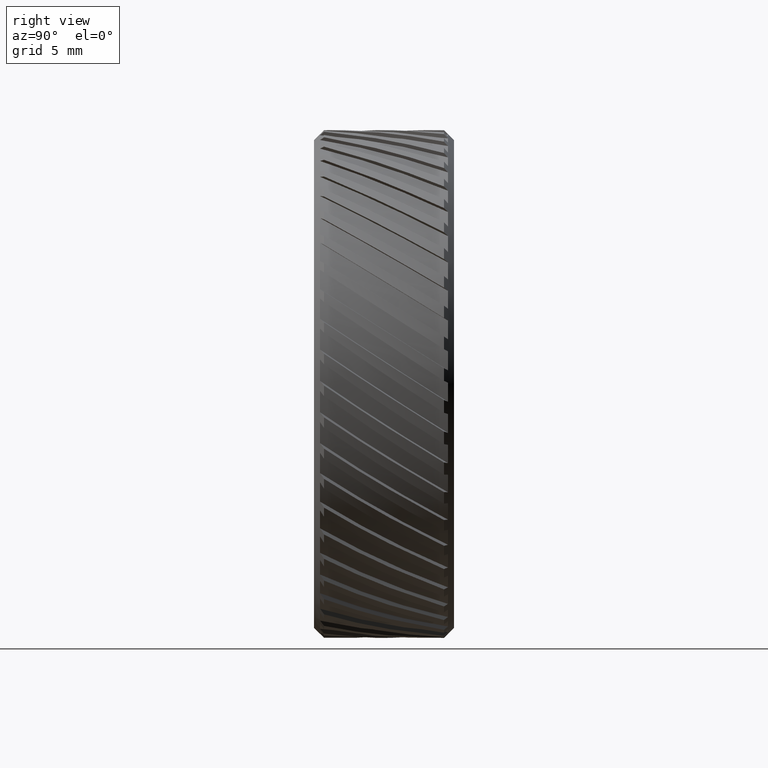
[diagram: clean part render]
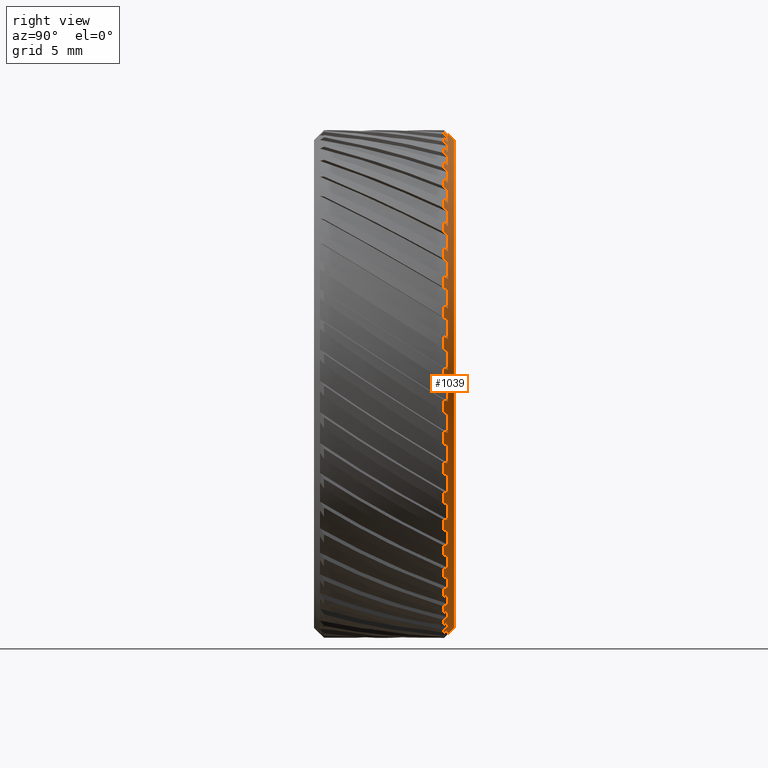
[diagram: same view with one face highlighted and labeled with its STEP entity id]
A machine part, right view. The second image highlights one B-rep face of the part: STEP entity #1039.
In plain terms, the highlighted conical surface has half-angle 45 deg.
Its self-contained STEP definition (entity closure, byte-faithful):
#10 = EDGE_CURVE ( 'NONE', #6983, #4998, #1515, .T. ) ;
#15 = ORIENTED_EDGE ( 'NONE', *, *, #891, .F. ) ;
#26 = AXIS2_PLACEMENT_3D ( 'NONE', #6832, #900, #1479 ) ;
#30 = EDGE_CURVE ( 'NONE', #6849, #4882, #1419, .T. ) ;
#41 = CARTESIAN_POINT ( 'NONE',  ( 12.45512900317289100, -6.697508753040151100, 1.670529021139838300 ) ) ;
#50 = CIRCLE ( 'NONE', #2698, 12.70000000000000600 ) ;
#53 = CARTESIAN_POINT ( 'NONE',  ( 11.85598810799129900, -6.630884482231918400, -3.960498198859472300 ) ) ;
#81 = CARTESIAN_POINT ( 'NONE',  ( 9.066365594821308000, -6.630884482231918400, 8.605289937070145000 ) ) ;
#87 = CARTESIAN_POINT ( 'NONE',  ( 11.35379095787202400, -6.630884482231918400, 5.228903411322852100 ) ) ;
#88 = CARTESIAN_POINT ( 'NONE',  ( 9.784008586817336100, -6.830884482231923000, -8.097109112089622600 ) ) ;
#99 = CARTESIAN_POINT ( 'NONE',  ( 4.672980017882888000, -6.830884482231923000, -11.80903288811016200 ) ) ;
#100 = CARTESIAN_POINT ( 'NONE',  ( 8.631600128995433600, -6.630884482231918400, 9.041320656470835700 ) ) ;
#104 = CARTESIAN_POINT ( 'NONE',  ( 2.532599377417204400, -6.830884482231923000, -12.44491624694622800 ) ) ;
#132 = CARTESIAN_POINT ( 'NONE',  ( 12.26133581683595600, -6.830884482231923000, 3.309024627707674700 ) ) ;
#137 = AXIS2_PLACEMENT_3D ( 'NONE', #3496, #3470, #1638 ) ;
#139 = ORIENTED_EDGE ( 'NONE', *, *, #3556, .F. ) ;
#141 = VERTEX_POINT ( 'NONE', #3591 ) ;
#168 = CIRCLE ( 'NONE', #3367, 12.70000000000000600 ) ;
#181 = ORIENTED_EDGE ( 'NONE', *, *, #5584, .F. ) ;
#190 = CARTESIAN_POINT ( 'NONE',  ( 0.0000000000000000000, -6.630884482231918400, 0.0000000000000000000 ) ) ;
#191 = CARTESIAN_POINT ( 'NONE',  ( 9.094498708546579400, -6.697508753040151100, 8.672427511163967000 ) ) ;
#208 = VERTEX_POINT ( 'NONE', #99 ) ;
#212 = ORIENTED_EDGE ( 'NONE', *, *, #2558, .F. ) ;
#215 = CARTESIAN_POINT ( 'NONE',  ( 3.160655126626070700, -6.830884482231923000, 12.30041703238278700 ) ) ;
#220 = DIRECTION ( 'NONE',  ( 0.0000000000000000000, 0.0000000000000000000, -1.000000000000000000 ) ) ;
#228 = CARTESIAN_POINT ( 'NONE',  ( 1.589382701141843300, -6.830884482231923000, -12.60015327800861600 ) ) ;
#240 = ORIENTED_EDGE ( 'NONE', *, *, #3475, .F. ) ;
#249 = CARTESIAN_POINT ( 'NONE',  ( 12.49982240545623400, -6.630884482231918400, 0.06663206476292772600 ) ) ;
#253 = ORIENTED_EDGE ( 'NONE', *, *, #769, .F. ) ;
#255 = CARTESIAN_POINT ( 'NONE',  ( 0.0000000000000000000, -6.830884482231923000, 0.0000000000000000000 ) ) ;
#262 = CIRCLE ( 'NONE', #3168, 12.50000000000000500 ) ;
#279 = DIRECTION ( 'NONE',  ( -0.1253332335643045400, 0.0000000000000000000, -0.9921147013144778800 ) ) ;
#287 = ORIENTED_EDGE ( 'NONE', *, *, #2817, .F. ) ;
#309 = ORIENTED_EDGE ( 'NONE', *, *, #3930, .F. ) ;
#332 = AXIS2_PLACEMENT_3D ( 'NONE', #5337, #6534, #4800 ) ;
#334 = LINE ( 'NONE', #7404, #4050 ) ;
#340 = CARTESIAN_POINT ( 'NONE',  ( 5.931495797741938200, -6.630884482231918400, -11.00306128317796500 ) ) ;
#343 = DIRECTION ( 'NONE',  ( 0.0000000000000000000, 0.0000000000000000000, -1.000000000000000000 ) ) ;
#350 = CARTESIAN_POINT ( 'NONE',  ( 3.926028409341659300, -6.630884482231918400, -11.86744711085928500 ) ) ;
#368 = CARTESIAN_POINT ( 'NONE',  ( 12.39290636013742400, -6.630884482231918400, 1.632749812085613400 ) ) ;
#372 = CARTESIAN_POINT ( 'NONE',  ( 1.464468305853522800, -6.630884482231918400, -12.41391689118107200 ) ) ;
#374 = CARTESIAN_POINT ( 'NONE',  ( 0.0000000000000000000, -6.630884482231918400, 0.0000000000000000000 ) ) ;
#388 = EDGE_CURVE ( 'NONE', #2570, #510, #987, .T. ) ;
#390 = VERTEX_POINT ( 'NONE', #7532 ) ;
#415 = DIRECTION ( 'NONE',  ( 0.0000000000000000000, -1.000000000000000000, 0.0000000000000000000 ) ) ;
#421 = CARTESIAN_POINT ( 'NONE',  ( 12.54602891470519800, -6.697494178897500200, 0.7197193839659499200 ) ) ;
#433 = CARTESIAN_POINT ( 'NONE',  ( 6.120346657648833700, -6.830884482231923000, 11.12795384561811800 ) ) ;
#441 = CARTESIAN_POINT ( 'NONE',  ( 4.505674931997924100, -6.630884482231918400, -11.65971240670908100 ) ) ;
#445 = DIRECTION ( 'NONE',  ( 0.0000000000000000000, 0.0000000000000000000, -1.000000000000000000 ) ) ;
#446 = CARTESIAN_POINT ( 'NONE',  ( 12.19544882450880500, -6.697508753040149400, -3.031820190073252400 ) ) ;
#451 = CIRCLE ( 'NONE', #1165, 12.50000000000000700 ) ;
#479 = VERTEX_POINT ( 'NONE', #5999 ) ;
#481 = DIRECTION ( 'NONE',  ( 0.0000000000000000000, -1.000000000000000000, 0.0000000000000000000 ) ) ;
#485 = EDGE_CURVE ( 'NONE', #6895, #727, #2132, .T. ) ;
#498 = VERTEX_POINT ( 'NONE', #6808 ) ;
#507 = ORIENTED_EDGE ( 'NONE', *, *, #3175, .F. ) ;
#510 = VERTEX_POINT ( 'NONE', #3148 ) ;
#519 = DIRECTION ( 'NONE',  ( 0.0000000000000000000, -1.000000000000000000, 0.0000000000000000000 ) ) ;
#521 = CARTESIAN_POINT ( 'NONE',  ( 3.057862565839990500, -6.697494178897499300, -12.18894228588804300 ) ) ;
#530 = CARTESIAN_POINT ( 'NONE',  ( 2.407684982128884600, -6.630884482231918400, -12.26593058136361800 ) ) ;
#531 = CARTESIAN_POINT ( 'NONE',  ( -0.0000000000000000000, -6.630884482231918400, 0.0000000000000000000 ) ) ;
#536 = VERTEX_POINT ( 'NONE', #249 ) ;
#540 = CARTESIAN_POINT ( 'NONE',  ( 1.668756249885416500, -6.630884482231918400, 12.38810932218748900 ) ) ;
#542 = ORIENTED_EDGE ( 'NONE', *, *, #4578, .F. ) ;
#543 = VERTEX_POINT ( 'NONE', #1382 ) ;
#544 = B_SPLINE_CURVE_WITH_KNOTS ( 'NONE', 3,
 ( #2599, #5652, #2676, #6844 ),
 .UNSPECIFIED., .F., .F.,
 ( 4, 4 ),
 ( 3.002247312247497400E-007, 0.0003007787589879150800 ),
 .UNSPECIFIED. ) ;
#555 = CARTESIAN_POINT ( 'NONE',  ( 12.51728684444396800, -6.764176022478273400, 1.708339216013203600 ) ) ;
#559 = ORIENTED_EDGE ( 'NONE', *, *, #1568, .F. ) ;
#560 = CARTESIAN_POINT ( 'NONE',  ( 3.776050373548861700, -6.830884482231923000, 12.12565229488383900 ) ) ;
#578 = VERTEX_POINT ( 'NONE', #5539 ) ;
#580 = EDGE_CURVE ( 'NONE', #5409, #2393, #3796, .T. ) ;
#582 = DIRECTION ( 'NONE',  ( 0.0000000000000000000, 0.0000000000000000000, -1.000000000000000000 ) ) ;
#587 = CARTESIAN_POINT ( 'NONE',  ( 5.261875033725183400, -6.630884482231918400, 11.33854801680796600 ) ) ;
#642 = AXIS2_PLACEMENT_3D ( 'NONE', #5379, #5456, #3630 ) ;
#647 = EDGE_CURVE ( 'NONE', #4629, #5551, #4255, .T. ) ;
#648 = CARTESIAN_POINT ( 'NONE',  ( 11.74992076510219300, -6.830884482231923000, 4.819684845902322900 ) ) ;
#658 = ORIENTED_EDGE ( 'NONE', *, *, #3463, .F. ) ;
#664 = EDGE_CURVE ( 'NONE', #578, #3708, #1253, .T. ) ;
#687 = CARTESIAN_POINT ( 'NONE',  ( 10.15173409768026000, -6.630884482231918400, -7.293304793438714700 ) ) ;
#699 = CARTESIAN_POINT ( 'NONE',  ( 7.396572046733936600, -6.764161668706568000, -10.24165721528557100 ) ) ;
#724 = CARTESIAN_POINT ( 'NONE',  ( 9.784008586817336100, -6.830884482231923000, -8.097109112089622600 ) ) ;
#727 = VERTEX_POINT ( 'NONE', #4241 ) ;
#728 = EDGE_CURVE ( 'NONE', #2209, #1922, #4525, .T. ) ;
#741 = EDGE_CURVE ( 'NONE', #498, #6849, #2660, .T. ) ;
#748 = VERTEX_POINT ( 'NONE', #350 ) ;
#750 = ORIENTED_EDGE ( 'NONE', *, *, #7587, .F. ) ;
#767 = ORIENTED_EDGE ( 'NONE', *, *, #728, .F. ) ;
#768 = CARTESIAN_POINT ( 'NONE',  ( 7.442586489885594700, -6.697494178897500200, 10.12564782425537600 ) ) ;
#769 = EDGE_CURVE ( 'NONE', #2430, #6440, #6279, .T. ) ;
#775 = EDGE_CURVE ( 'NONE', #1170, #4485, #6196, .T. ) ;
#780 = CARTESIAN_POINT ( 'NONE',  ( 0.6418917063779742100, -6.830884482231923000, 12.68376817185190400 ) ) ;
#784 = CARTESIAN_POINT ( 'NONE',  ( 0.0000000000000000000, -6.830884482231923000, 0.0000000000000000000 ) ) ;
#796 = DIRECTION ( 'NONE',  ( 0.0000000000000000000, -1.000000000000000000, 0.0000000000000000000 ) ) ;
#802 = DIRECTION ( 'NONE',  ( 0.0000000000000000000, 0.0000000000000000000, -1.000000000000000000 ) ) ;
#805 = CARTESIAN_POINT ( 'NONE',  ( 11.71929623991613000, -6.697508753040152900, -4.536408418257412500 ) ) ;
#823 = CARTESIAN_POINT ( 'NONE',  ( 9.066365594821308000, -6.630884482231918400, 8.605289937070145000 ) ) ;
#830 = CARTESIAN_POINT ( 'NONE',  ( 12.67508791928130300, -6.830884482231923000, 0.7950762469658958500 ) ) ;
#846 = EDGE_CURVE ( 'NONE', #5360, #4668, #939, .T. ) ;
#852 = CARTESIAN_POINT ( 'NONE',  ( 11.49231161614946300, -6.830884482231923000, 5.405254269441575100 ) ) ;
#858 = ORIENTED_EDGE ( 'NONE', *, *, #664, .F. ) ;
#863 = VERTEX_POINT ( 'NONE', #4705 ) ;
#869 = ORIENTED_EDGE ( 'NONE', *, *, #6026, .F. ) ;
#871 = CARTESIAN_POINT ( 'NONE',  ( 11.44622870245351400, -6.764161668706566200, 5.346463228066402200 ) ) ;
#883 = B_SPLINE_CURVE_WITH_KNOTS ( 'NONE', 3,
 ( #7283, #3098, #6686, #3759 ),
 .UNSPECIFIED., .F., .F.,
 ( 4, 4 ),
 ( 0.0004450790330045530000, 0.0007411184394910795200 ),
 .UNSPECIFIED. ) ;
#891 = EDGE_CURVE ( 'NONE', #2536, #4184, #5629, .T. ) ;
#900 = DIRECTION ( 'NONE',  ( 0.0000000000000000000, -1.000000000000000000, 0.0000000000000000000 ) ) ;
#907 = ORIENTED_EDGE ( 'NONE', *, *, #1804, .F. ) ;
#914 = CARTESIAN_POINT ( 'NONE',  ( 1.589382701141843300, -6.830884482231923000, -12.60015327800861600 ) ) ;
#919 = ORIENTED_EDGE ( 'NONE', *, *, #1193, .F. ) ;
#924 = CARTESIAN_POINT ( 'NONE',  ( 3.160655126626070700, -6.830884482231923000, 12.30041703238278700 ) ) ;
#939 = B_SPLINE_CURVE_WITH_KNOTS ( 'NONE', 3,
 ( #2931, #6572, #7148, #560 ),
 .UNSPECIFIED., .F., .F.,
 ( 4, 4 ),
 ( 0.0004450790330045545700, 0.0007411184394910786500 ),
 .UNSPECIFIED. ) ;
#971 = DIRECTION ( 'NONE',  ( -0.4817536741017162700, 0.0000000000000000000, -0.8763066800438630300 ) ) ;
#982 = B_SPLINE_CURVE_WITH_KNOTS ( 'NONE', 3,
 ( #2874, #7042, #7012, #3490 ),
 .UNSPECIFIED., .F., .F.,
 ( 4, 4 ),
 ( 0.0004450790330045552200, 0.0007411184394910796300 ),
 .UNSPECIFIED. ) ;
#987 = CIRCLE ( 'NONE', #4053, 12.50000000000000500 ) ;
#1012 = EDGE_CURVE ( 'NONE', #6037, #3053, #3240, .T. ) ;
#1015 = ORIENTED_EDGE ( 'NONE', *, *, #4601, .F. ) ;
#1019 = VERTEX_POINT ( 'NONE', #4423 ) ;
#1032 = CARTESIAN_POINT ( 'NONE',  ( 9.757013042704811000, -6.764161668706567100, 8.025055578774830800 ) ) ;
#1039 = ADVANCED_FACE ( 'NONE', ( #7406 ), #2476, .T. ) ;
#1045 = EDGE_CURVE ( 'NONE', #1019, #7253, #262, .T. ) ;
#1052 = CARTESIAN_POINT ( 'NONE',  ( 6.116196451824467100, -6.830884482231923000, -11.13023544057761400 ) ) ;
#1054 = B_SPLINE_CURVE_WITH_KNOTS ( 'NONE', 3,
 ( #4046, #1055, #6511, #5807 ),
 .UNSPECIFIED., .F., .F.,
 ( 4, 4 ),
 ( 0.0004450790330045539800, 0.0007411184394910786500 ),
 .UNSPECIFIED. ) ;
#1055 = CARTESIAN_POINT ( 'NONE',  ( 10.22295410059070500, -6.697508753040148500, -7.308359265482549100 ) ) ;
#1071 = CARTESIAN_POINT ( 'NONE',  ( 8.674269915363433700, -6.764161668706565300, 9.184653613139564900 ) ) ;
#1073 = B_SPLINE_CURVE_WITH_KNOTS ( 'NONE', 3,
 ( #1534, #5789, #6961, #441 ),
 .UNSPECIFIED., .F., .F.,
 ( 4, 4 ),
 ( 3.002247312253789800E-007, 0.0003007787589879161600 ),
 .UNSPECIFIED. ) ;
#1081 = CARTESIAN_POINT ( 'NONE',  ( 11.20331237309593700, -6.830884482231923000, -5.981286807271134300 ) ) ;
#1093 = CARTESIAN_POINT ( 'NONE',  ( 0.0000000000000000000, -6.830884482231923000, 0.0000000000000000000 ) ) ;
#1139 = EDGE_CURVE ( 'NONE', #4178, #390, #7679, .T. ) ;
#1150 = EDGE_CURVE ( 'NONE', #3590, #4259, #5647, .T. ) ;
#1151 = CARTESIAN_POINT ( 'NONE',  ( 0.8851685927987853500, -6.697508753040152000, -12.53544503631489200 ) ) ;
#1153 = CIRCLE ( 'NONE', #2388, 12.70000000000000600 ) ;
#1160 = ORIENTED_EDGE ( 'NONE', *, *, #6804, .F. ) ;
#1164 = LINE ( 'NONE', #3583, #2294 ) ;
#1165 = AXIS2_PLACEMENT_3D ( 'NONE', #374, #6811, #3283 ) ;
#1170 = VERTEX_POINT ( 'NONE', #1634 ) ;
#1183 = CARTESIAN_POINT ( 'NONE',  ( 12.09054677835583100, -6.630884482231918400, 3.173118119514245300 ) ) ;
#1188 = AXIS2_PLACEMENT_3D ( 'NONE', #2721, #2667, #343 ) ;
#1193 = EDGE_CURVE ( 'NONE', #7328, #863, #982, .T. ) ;
#1199 = EDGE_CURVE ( 'NONE', #1922, #7185, #4434, .T. ) ;
#1200 = DIRECTION ( 'NONE',  ( -0.9048270524660175800, 0.0000000000000000000, 0.4257792915650767100 ) ) ;
#1207 = B_SPLINE_CURVE_WITH_KNOTS ( 'NONE', 3,
 ( #4239, #41, #555, #7554 ),
 .UNSPECIFIED., .F., .F.,
 ( 4, 4 ),
 ( 0.0004450790330045552200, 0.0007411184394910799500 ),
 .UNSPECIFIED. ) ;
#1213 = DIRECTION ( 'NONE',  ( 0.0000000000000000000, 0.0000000000000000000, -1.000000000000000000 ) ) ;
#1235 = DIRECTION ( 'NONE',  ( 0.0000000000000000000, 0.0000000000000000000, -1.000000000000000000 ) ) ;
#1240 = CARTESIAN_POINT ( 'NONE',  ( 7.974633173919341000, -6.830884482231923000, 9.884089525162412600 ) ) ;
#1246 = CARTESIAN_POINT ( 'NONE',  ( 12.25888214633645200, -6.630884482231918400, -2.443319160943503200 ) ) ;
#1253 = CIRCLE ( 'NONE', #26, 12.70000000000000600 ) ;
#1261 = CARTESIAN_POINT ( 'NONE',  ( 10.18216851717601100, -6.830884482231923000, 7.590352052957087800 ) ) ;
#1263 = CARTESIAN_POINT ( 'NONE',  ( 12.56628939479863000, -6.697508753040151100, 0.09631480841710431100 ) ) ;
#1282 = AXIS2_PLACEMENT_3D ( 'NONE', #5473, #7213, #1901 ) ;
#1286 = CARTESIAN_POINT ( 'NONE',  ( 7.430359430277082600, -6.630884482231918400, 10.05185349758405000 ) ) ;
#1293 = CARTESIAN_POINT ( 'NONE',  ( 9.565462331917425200, -6.630884482231918400, -8.046858416591476300 ) ) ;
#1296 = DIRECTION ( 'NONE',  ( 0.0000000000000000000, -1.000000000000000000, 0.0000000000000000000 ) ) ;
#1304 = ORIENTED_EDGE ( 'NONE', *, *, #5110, .F. ) ;
#1312 = CARTESIAN_POINT ( 'NONE',  ( 11.86462492519767600, -6.830884482231923000, -4.529975207920934100 ) ) ;
#1317 = B_SPLINE_CURVE_WITH_KNOTS ( 'NONE', 3,
 ( #2415, #2987, #2465, #6053 ),
 .UNSPECIFIED., .F., .F.,
 ( 4, 4 ),
 ( 3.002247312258756100E-007, 0.0003007787589879160500 ),
 .UNSPECIFIED. ) ;
#1331 = AXIS2_PLACEMENT_3D ( 'NONE', #3395, #4633, #7487 ) ;
#1335 = CIRCLE ( 'NONE', #6276, 12.50000000000000700 ) ;
#1342 = CIRCLE ( 'NONE', #1387, 12.70000000000000600 ) ;
#1343 = DIRECTION ( 'NONE',  ( 0.0000000000000000000, -1.000000000000000000, 0.0000000000000000000 ) ) ;
#1353 = VERTEX_POINT ( 'NONE', #3510 ) ;
#1358 = CARTESIAN_POINT ( 'NONE',  ( 9.711191711791714800, -6.764161668706566200, -8.080444053068166700 ) ) ;
#1366 = CARTESIAN_POINT ( 'NONE',  ( 2.490935142863496500, -6.764176022478273400, -12.38531933125287800 ) ) ;
#1368 = B_SPLINE_CURVE_WITH_KNOTS ( 'NONE', 3,
 ( #924, #5134, #1581, #1500 ),
 .UNSPECIFIED., .F., .F.,
 ( 4, 4 ),
 ( 3.002247312244398900E-007, 0.0003007787589879155700 ),
 .UNSPECIFIED. ) ;
#1382 = CARTESIAN_POINT ( 'NONE',  ( 7.466788334619989700, -6.830884482231923000, 10.27312376864910000 ) ) ;
#1387 = AXIS2_PLACEMENT_3D ( 'NONE', #2928, #5343, #1235 ) ;
#1395 = EDGE_CURVE ( 'NONE', #510, #3911, #7358, .T. ) ;
#1417 = DIRECTION ( 'NONE',  ( 0.0000000000000000000, 0.0000000000000000000, -1.000000000000000000 ) ) ;
#1419 = B_SPLINE_CURVE_WITH_KNOTS ( 'NONE', 3,
 ( #2339, #6509, #7001, #540 ),
 .UNSPECIFIED., .F., .F.,
 ( 4, 4 ),
 ( 3.002247312248247100E-007, 0.0003007787589879150800 ),
 .UNSPECIFIED. ) ;
#1426 = CARTESIAN_POINT ( 'NONE',  ( 0.6674258321488567600, -6.764176022478274300, 12.61568212906614900 ) ) ;
#1440 = ORIENTED_EDGE ( 'NONE', *, *, #5839, .F. ) ;
#1447 = EDGE_CURVE ( 'NONE', #727, #1940, #1609, .T. ) ;
#1448 = ORIENTED_EDGE ( 'NONE', *, *, #2613, .F. ) ;
#1457 = ORIENTED_EDGE ( 'NONE', *, *, #5715, .F. ) ;
#1472 = ORIENTED_EDGE ( 'NONE', *, *, #4951, .F. ) ;
#1474 = DIRECTION ( 'NONE',  ( 0.0000000000000000000, -1.000000000000000000, 0.0000000000000000000 ) ) ;
#1478 = EDGE_CURVE ( 'NONE', #5553, #578, #6771, .T. ) ;
#1479 = DIRECTION ( 'NONE',  ( 0.0000000000000000000, 0.0000000000000000000, -1.000000000000000000 ) ) ;
#1480 = VERTEX_POINT ( 'NONE', #6063 ) ;
#1500 = CARTESIAN_POINT ( 'NONE',  ( 3.208239407519601000, -6.630884482231918400, 12.08127476320435700 ) ) ;
#1515 = B_SPLINE_CURVE_WITH_KNOTS ( 'NONE', 3,
 ( #1052, #7028, #1651, #5311 ),
 .UNSPECIFIED., .F., .F.,
 ( 4, 4 ),
 ( 3.002247312253390100E-007, 0.0003007787589879151900 ),
 .UNSPECIFIED. ) ;
#1521 = CARTESIAN_POINT ( 'NONE',  ( 6.641480464309041500, -6.630884482231918400, 10.58965236644723600 ) ) ;
#1523 = EDGE_CURVE ( 'NONE', #6429, #2536, #2270, .T. ) ;
#1534 = CARTESIAN_POINT ( 'NONE',  ( 4.672980017882888000, -6.830884482231923000, -11.80903288811016200 ) ) ;
#1547 = VERTEX_POINT ( 'NONE', #215 ) ;
#1550 = EDGE_CURVE ( 'NONE', #4014, #5553, #4343, .T. ) ;
#1552 = CARTESIAN_POINT ( 'NONE',  ( 8.214717878160046300, -6.830884482231923000, -9.685474184686981400 ) ) ;
#1568 = EDGE_CURVE ( 'NONE', #6991, #2570, #3838, .T. ) ;
#1581 = CARTESIAN_POINT ( 'NONE',  ( 3.192442336538599900, -6.697494178897499300, 12.15438807378434700 ) ) ;
#1592 = DIRECTION ( 'NONE',  ( -0.5877852522924685900, 0.0000000000000000000, 0.8090169943749507800 ) ) ;
#1594 = ORIENTED_EDGE ( 'NONE', *, *, #741, .F. ) ;
#1609 = CIRCLE ( 'NONE', #1282, 12.50000000000000700 ) ;
#1620 = CARTESIAN_POINT ( 'NONE',  ( 2.260079017897481400, -6.697508753040150300, 12.36175345689310100 ) ) ;
#1625 = ORIENTED_EDGE ( 'NONE', *, *, #5064, .F. ) ;
#1634 = CARTESIAN_POINT ( 'NONE',  ( 9.696715337411545100, -6.630884482231918400, 7.888200787581918200 ) ) ;
#1635 = CARTESIAN_POINT ( 'NONE',  ( 6.114819288672723700, -6.697494178897500200, 10.97860749763608400 ) ) ;
#1638 = DIRECTION ( 'NONE',  ( -0.8443279255020164100, 0.0000000000000000000, -0.5358267949789945500 ) ) ;
#1639 = DIRECTION ( 'NONE',  ( 0.0000000000000000000, -1.000000000000000000, 0.0000000000000000000 ) ) ;
#1649 = VERTEX_POINT ( 'NONE', #3346 ) ;
#1651 = CARTESIAN_POINT ( 'NONE',  ( 5.993060872054631900, -6.697494178897499300, -11.04554475361550200 ) ) ;
#1652 = CARTESIAN_POINT ( 'NONE',  ( 9.696715337411545100, -6.630884482231918400, 7.888200787581918200 ) ) ;
#1658 = CARTESIAN_POINT ( 'NONE',  ( 5.382456023243512400, -6.630884482231918400, -11.28180691014741100 ) ) ;
#1662 = CARTESIAN_POINT ( 'NONE',  ( 0.0000000000000000000, -6.630884482231918400, -0.0000000000000000000 ) ) ;
#1669 = B_SPLINE_CURVE_WITH_KNOTS ( 'NONE', 3,
 ( #6903, #5149, #5729, #2248 ),
 .UNSPECIFIED., .F., .F.,
 ( 4, 4 ),
 ( 3.002247312246777500E-007, 0.0003007787589879145900 ),
 .UNSPECIFIED. ) ;
#1672 = DIRECTION ( 'NONE',  ( 0.0000000000000000000, 0.0000000000000000000, -1.000000000000000000 ) ) ;
#1681 = AXIS2_PLACEMENT_3D ( 'NONE', #6016, #6701, #802 ) ;
#1686 = ORIENTED_EDGE ( 'NONE', *, *, #2751, .F. ) ;
#1693 = CARTESIAN_POINT ( 'NONE',  ( 12.47460414658621300, -6.830884482231923000, -2.382068719826175400 ) ) ;
#1741 = CARTESIAN_POINT ( 'NONE',  ( 12.53730448704691000, -6.697494178897499300, -0.8583901906176475400 ) ) ;
#1756 = ORIENTED_EDGE ( 'NONE', *, *, #6395, .F. ) ;
#1773 = ORIENTED_EDGE ( 'NONE', *, *, #5380, .F. ) ;
#1778 = CARTESIAN_POINT ( 'NONE',  ( 0.06947249141813843800, -6.697494178897500200, 12.56646374654426500 ) ) ;
#1781 = CARTESIAN_POINT ( 'NONE',  ( 7.916345780542624900, -6.630884482231918400, 9.673751572315943300 ) ) ;
#1782 = DIRECTION ( 'NONE',  ( -0.2486898871648483800, 0.0000000000000000000, 0.9685831611286327400 ) ) ;
#1795 = CARTESIAN_POINT ( 'NONE',  ( 12.63269597691081200, -6.764176022478274300, 0.1260364153726549800 ) ) ;
#1799 = CARTESIAN_POINT ( 'NONE',  ( 5.266022299696073700, -6.830884482231923000, 11.55677330136331400 ) ) ;
#1800 = AXIS2_PLACEMENT_3D ( 'NONE', #3813, #6229, #2870 ) ;
#1804 = EDGE_CURVE ( 'NONE', #1845, #7064, #4153, .T. ) ;
#1812 = CIRCLE ( 'NONE', #3405, 12.70000000000000600 ) ;
#1830 = CARTESIAN_POINT ( 'NONE',  ( 10.72423331064264900, -6.830884482231923000, 6.803000801036464700 ) ) ;
#1837 = CARTESIAN_POINT ( 'NONE',  ( 7.462956814082121000, -6.830884482231923000, -10.27590753126678900 ) ) ;
#1838 = CARTESIAN_POINT ( 'NONE',  ( 6.111937524661688500, -6.630884482231918400, 10.90386260435414000 ) ) ;
#1842 = VERTEX_POINT ( 'NONE', #3631 ) ;
#1845 = VERTEX_POINT ( 'NONE', #3558 ) ;
#1853 = CARTESIAN_POINT ( 'NONE',  ( 12.49982240545623400, -6.630884482231918400, 0.06663206476292772600 ) ) ;
#1858 = EDGE_CURVE ( 'NONE', #7508, #4934, #7507, .T. ) ;
#1874 = ORIENTED_EDGE ( 'NONE', *, *, #5076, .F. ) ;
#1901 = DIRECTION ( 'NONE',  ( -0.4817536741017102200, 0.0000000000000000000, 0.8763066800438664700 ) ) ;
#1906 = AXIS2_PLACEMENT_3D ( 'NONE', #5067, #2719, #4543 ) ;
#1908 = CARTESIAN_POINT ( 'NONE',  ( 10.36531689233605700, -6.830884482231923000, -7.338269940623127300 ) ) ;
#1918 = VERTEX_POINT ( 'NONE', #1781 ) ;
#1919 = CARTESIAN_POINT ( 'NONE',  ( 0.7183697612589408100, -6.630884482231918400, 12.47934072321566700 ) ) ;
#1922 = VERTEX_POINT ( 'NONE', #2990 ) ;
#1940 = VERTEX_POINT ( 'NONE', #5952 ) ;
#1941 = CARTESIAN_POINT ( 'NONE',  ( 4.697126713187874900, -6.630884482231918400, 11.58391128420176800 ) ) ;
#1945 = CARTESIAN_POINT ( 'NONE',  ( 1.464468305853522800, -6.630884482231918400, -12.41391689118107200 ) ) ;
#1961 = EDGE_CURVE ( 'NONE', #4259, #3589, #883, .T. ) ;
#1964 = DIRECTION ( 'NONE',  ( 0.0000000000000000000, -1.000000000000000000, 0.0000000000000000000 ) ) ;
#1979 = B_SPLINE_CURVE_WITH_KNOTS ( 'NONE', 3,
 ( #7477, #6865, #6306, #5623 ),
 .UNSPECIFIED., .F., .F.,
 ( 4, 4 ),
 ( 3.002247312256704200E-007, 0.0003007787589879148600 ),
 .UNSPECIFIED. ) ;
#1981 = B_SPLINE_CURVE_WITH_KNOTS ( 'NONE', 3,
 ( #3655, #4846, #7101, #1246 ),
 .UNSPECIFIED., .F., .F.,
 ( 4, 4 ),
 ( 3.002247312260028200E-007, 0.0003007787589879151300 ),
 .UNSPECIFIED. ) ;
#1985 = ORIENTED_EDGE ( 'NONE', *, *, #388, .F. ) ;
#2000 = CARTESIAN_POINT ( 'NONE',  ( 9.363854172243868800, -6.830884482231923000, -8.579524173341509300 ) ) ;
#2012 = DIRECTION ( 'NONE',  ( 0.0000000000000000000, 0.0000000000000000000, -1.000000000000000000 ) ) ;
#2013 = CARTESIAN_POINT ( 'NONE',  ( 10.72169562430976000, -6.830884482231923000, -6.806999554844790800 ) ) ;
#2014 = VERTEX_POINT ( 'NONE', #1919 ) ;
#2020 = CARTESIAN_POINT ( 'NONE',  ( 6.936030575903033400, -6.830884482231923000, -10.63867848231811300 ) ) ;
#2023 = VERTEX_POINT ( 'NONE', #6054 ) ;
#2040 = CARTESIAN_POINT ( 'NONE',  ( 12.54887994741498500, -6.764176022478274300, -1.458254054828823900 ) ) ;
#2060 = ORIENTED_EDGE ( 'NONE', *, *, #1858, .F. ) ;
#2074 = DIRECTION ( 'NONE',  ( 0.0000000000000000000, -1.000000000000000000, -0.0000000000000000000 ) ) ;
#2075 = CIRCLE ( 'NONE', #4965, 12.50000000000000500 ) ;
#2101 = CIRCLE ( 'NONE', #4741, 12.70000000000000600 ) ;
#2113 = ORIENTED_EDGE ( 'NONE', *, *, #5825, .F. ) ;
#2117 = CARTESIAN_POINT ( 'NONE',  ( 3.156067897556341000, -6.830884482231923000, -12.30159483262290400 ) ) ;
#2132 = B_SPLINE_CURVE_WITH_KNOTS ( 'NONE', 3,
 ( #1837, #699, #2437, #6607 ),
 .UNSPECIFIED., .F., .F.,
 ( 4, 4 ),
 ( 3.002247312253806800E-007, 0.0003007787589879151300 ),
 .UNSPECIFIED. ) ;
#2141 = CARTESIAN_POINT ( 'NONE',  ( 11.59751205133701100, -6.630884482231918400, 4.663444458669252900 ) ) ;
#2149 = ORIENTED_EDGE ( 'NONE', *, *, #5896, .F. ) ;
#2170 = B_SPLINE_CURVE_WITH_KNOTS ( 'NONE', 3,
 ( #228, #7280, #4321, #1945 ),
 .UNSPECIFIED., .F., .F.,
 ( 4, 4 ),
 ( 3.002247312254030200E-007, 0.0003007787589879152900 ),
 .UNSPECIFIED. ) ;
#2175 = CARTESIAN_POINT ( 'NONE',  ( 0.0000000000000000000, -6.630884482231918400, -0.0000000000000000000 ) ) ;
#2184 = VERTEX_POINT ( 'NONE', #5949 ) ;
#2190 = VERTEX_POINT ( 'NONE', #1838 ) ;
#2209 = VERTEX_POINT ( 'NONE', #87 ) ;
#2217 = CARTESIAN_POINT ( 'NONE',  ( 0.0000000000000000000, -6.830884482231923000, 0.0000000000000000000 ) ) ;
#2223 = B_SPLINE_CURVE_WITH_KNOTS ( 'NONE', 3,
 ( #5041, #3480, #5803, #6393 ),
 .UNSPECIFIED., .F., .F.,
 ( 4, 4 ),
 ( 3.002247312253684500E-007, 0.0003007787589879162200 ),
 .UNSPECIFIED. ) ;
#2227 = CARTESIAN_POINT ( 'NONE',  ( 6.672945908407836400, -6.830884482231923000, 10.80563708919855200 ) ) ;
#2228 = CARTESIAN_POINT ( 'NONE',  ( 2.243327214967199400, -6.764176022478272500, 12.43255306964929500 ) ) ;
#2241 = CARTESIAN_POINT ( 'NONE',  ( 6.117621304405739500, -6.764161668706567100, 11.05330403697545400 ) ) ;
#2248 = CARTESIAN_POINT ( 'NONE',  ( 11.91961829749273600, -6.630884482231918400, 3.764664612163560500 ) ) ;
#2262 = CARTESIAN_POINT ( 'NONE',  ( 12.61843493897096000, -6.830884482231923000, -1.437045472821648200 ) ) ;
#2266 = CARTESIAN_POINT ( 'NONE',  ( 12.48137558764466500, -6.630884482231918400, 0.6821022211868620300 ) ) ;
#2270 = CIRCLE ( 'NONE', #4349, 12.50000000000000700 ) ;
#2290 = VERTEX_POINT ( 'NONE', #6360 ) ;
#2294 = VECTOR ( 'NONE', #5351, 1000.000000000000100 ) ;
#2296 = ORIENTED_EDGE ( 'NONE', *, *, #647, .F. ) ;
#2298 = CARTESIAN_POINT ( 'NONE',  ( 12.33882525464565900, -6.830884482231923000, -3.007223193465798700 ) ) ;
#2300 = EDGE_CURVE ( 'NONE', #4476, #7007, #6272, .T. ) ;
#2301 = CARTESIAN_POINT ( 'NONE',  ( 8.692021889227383700, -6.830884482231923000, -9.259522421658269700 ) ) ;
#2328 = CARTESIAN_POINT ( 'NONE',  ( 6.116196451824467100, -6.830884482231923000, -11.13023544057761400 ) ) ;
#2339 = CARTESIAN_POINT ( 'NONE',  ( 1.594081376052716200, -6.830884482231923000, 12.59955969732760500 ) ) ;
#2357 = EDGE_CURVE ( 'NONE', #390, #3671, #5077, .T. ) ;
#2366 = B_SPLINE_CURVE_WITH_KNOTS ( 'NONE', 3,
 ( #2117, #6936, #521, #2895 ),
 .UNSPECIFIED., .F., .F.,
 ( 4, 4 ),
 ( 3.002247312237905300E-007, 0.0003007787589879150200 ),
 .UNSPECIFIED. ) ;
#2375 = CARTESIAN_POINT ( 'NONE',  ( 12.25888214633645200, -6.630884482231918400, -2.443319160943503200 ) ) ;
#2388 = AXIS2_PLACEMENT_3D ( 'NONE', #6506, #3560, #582 ) ;
#2393 = VERTEX_POINT ( 'NONE', #2301 ) ;
#2394 = CARTESIAN_POINT ( 'NONE',  ( 12.67479054213492200, -6.830884482231923000, -0.7998029213545738700 ) ) ;
#2415 = CARTESIAN_POINT ( 'NONE',  ( 4.677383457768678800, -6.830884482231923000, 11.80728944292432000 ) ) ;
#2430 = VERTEX_POINT ( 'NONE', #3380 ) ;
#2435 = AXIS2_PLACEMENT_3D ( 'NONE', #255, #5033, #1417 ) ;
#2437 = CARTESIAN_POINT ( 'NONE',  ( 7.330177637487840200, -6.697494178897500200, -10.20731763604662100 ) ) ;
#2439 = EDGE_CURVE ( 'NONE', #479, #5133, #5125, .T. ) ;
#2442 = CARTESIAN_POINT ( 'NONE',  ( 9.363854172243868800, -6.830884482231923000, -8.579524173341509300 ) ) ;
#2452 = CIRCLE ( 'NONE', #1906, 12.50000000000000700 ) ;
#2453 = EDGE_CURVE ( 'NONE', #6124, #208, #7484, .T. ) ;
#2456 = CARTESIAN_POINT ( 'NONE',  ( 0.0000000000000000000, -6.830884482231923000, 0.0000000000000000000 ) ) ;
#2465 = CARTESIAN_POINT ( 'NONE',  ( 4.690617734461500100, -6.697494178897499300, 11.65842797247684000 ) ) ;
#2473 = CARTESIAN_POINT ( 'NONE',  ( 0.0000000000000000000, -6.630884482231918400, -0.0000000000000000000 ) ) ;
#2476 = CONICAL_SURFACE ( 'NONE', #1800, 12.20000000000001000, 0.7853981633974380600 ) ;
#2477 = CIRCLE ( 'NONE', #4843, 12.50000000000000700 ) ;
#2491 = ORIENTED_EDGE ( 'NONE', *, *, #2300, .F. ) ;
#2502 = ORIENTED_EDGE ( 'NONE', *, *, #4612, .F. ) ;
#2536 = VERTEX_POINT ( 'NONE', #2141 ) ;
#2542 = CARTESIAN_POINT ( 'NONE',  ( 2.276781326716093000, -6.630884482231918400, 12.29090178914131000 ) ) ;
#2543 = CARTESIAN_POINT ( 'NONE',  ( 9.150555710463192900, -6.830884482231923000, 8.806663964845585100 ) ) ;
#2558 = EDGE_CURVE ( 'NONE', #1547, #7320, #1368, .T. ) ;
#2569 = B_SPLINE_CURVE_WITH_KNOTS ( 'NONE', 3,
 ( #5194, #6410, #421, #2266 ),
 .UNSPECIFIED., .F., .F.,
 ( 4, 4 ),
 ( 3.002247312246025200E-007, 0.0003007787589879136700 ),
 .UNSPECIFIED. ) ;
#2570 = VERTEX_POINT ( 'NONE', #3922 ) ;
#2583 = CARTESIAN_POINT ( 'NONE',  ( 0.6418917063779742100, -6.830884482231923000, 12.68376817185190400 ) ) ;
#2584 = CARTESIAN_POINT ( 'NONE',  ( 12.40960878440903400, -6.630884482231918400, -1.500536510025134700 ) ) ;
#2590 = ORIENTED_EDGE ( 'NONE', *, *, #2453, .F. ) ;
#2592 = AXIS2_PLACEMENT_3D ( 'NONE', #4104, #7432, #7479 ) ;
#2598 = ORIENTED_EDGE ( 'NONE', *, *, #10, .F. ) ;
#2599 = CARTESIAN_POINT ( 'NONE',  ( 8.692021889227383700, -6.830884482231923000, -9.259522421658269700 ) ) ;
#2607 = EDGE_CURVE ( 'NONE', #4882, #2014, #7116, .T. ) ;
#2613 = EDGE_CURVE ( 'NONE', #4998, #7519, #5535, .T. ) ;
#2614 = ORIENTED_EDGE ( 'NONE', *, *, #1961, .F. ) ;
#2632 = ORIENTED_EDGE ( 'NONE', *, *, #1478, .F. ) ;
#2653 = CIRCLE ( 'NONE', #6586, 12.70000000000000600 ) ;
#2659 = CARTESIAN_POINT ( 'NONE',  ( 11.35379095787202400, -6.630884482231918400, 5.228903411322852100 ) ) ;
#2660 = CIRCLE ( 'NONE', #6494, 12.70000000000000600 ) ;
#2667 = DIRECTION ( 'NONE',  ( 0.0000000000000000000, -1.000000000000000000, 0.0000000000000000000 ) ) ;
#2673 = ORIENTED_EDGE ( 'NONE', *, *, #5561, .F. ) ;
#2676 = CARTESIAN_POINT ( 'NONE',  ( 8.551693122741989200, -6.697494178897499300, -9.208115021801287300 ) ) ;
#2679 = ORIENTED_EDGE ( 'NONE', *, *, #2989, .F. ) ;
#2686 = ORIENTED_EDGE ( 'NONE', *, *, #5766, .F. ) ;
#2698 = AXIS2_PLACEMENT_3D ( 'NONE', #5154, #4000, #5255 ) ;
#2719 = DIRECTION ( 'NONE',  ( 0.0000000000000000000, -1.000000000000000000, 0.0000000000000000000 ) ) ;
#2721 = CARTESIAN_POINT ( 'NONE',  ( 0.0000000000000000000, -6.830884482231923000, 0.0000000000000000000 ) ) ;
#2735 = AXIS2_PLACEMENT_3D ( 'NONE', #4839, #5915, #4225 ) ;
#2751 = EDGE_CURVE ( 'NONE', #6999, #4464, #1981, .T. ) ;
#2752 = CIRCLE ( 'NONE', #1681, 12.70000000000000600 ) ;
#2761 = EDGE_CURVE ( 'NONE', #4536, #3186, #3393, .T. ) ;
#2765 = B_SPLINE_CURVE_WITH_KNOTS ( 'NONE', 3,
 ( #7512, #1620, #2228, #6389 ),
 .UNSPECIFIED., .F., .F.,
 ( 4, 4 ),
 ( 0.0004450790330045530000, 0.0007411184394910794100 ),
 .UNSPECIFIED. ) ;
#2768 = CARTESIAN_POINT ( 'NONE',  ( 7.916345780542624900, -6.630884482231918400, 9.673751572315943300 ) ) ;
#2773 = VERTEX_POINT ( 'NONE', #6051 ) ;
#2785 = EDGE_CURVE ( 'NONE', #2290, #6895, #5810, .T. ) ;
#2790 = CARTESIAN_POINT ( 'NONE',  ( 9.787027439480557000, -6.830884482231923000, 8.093459946083314100 ) ) ;
#2801 = CARTESIAN_POINT ( 'NONE',  ( 6.111937524661688500, -6.630884482231918400, 10.90386260435414000 ) ) ;
#2816 = B_SPLINE_CURVE_WITH_KNOTS ( 'NONE', 3,
 ( #5254, #5904, #3018, #2442 ),
 .UNSPECIFIED., .F., .F.,
 ( 4, 4 ),
 ( 0.0004450790330045530000, 0.0007411184394910795200 ),
 .UNSPECIFIED. ) ;
#2817 = EDGE_CURVE ( 'NONE', #7650, #2996, #2170, .T. ) ;
#2819 = CARTESIAN_POINT ( 'NONE',  ( 8.084266157729965500, -6.697508753040152000, -9.621099021792209900 ) ) ;
#2823 = DIRECTION ( 'NONE',  ( -0.7705132427757860300, 0.0000000000000000000, 0.6374239897486935200 ) ) ;
#2830 = CARTESIAN_POINT ( 'NONE',  ( 8.652979656167300200, -6.697494178897499300, 9.113000635917346800 ) ) ;
#2836 = CARTESIAN_POINT ( 'NONE',  ( 6.652033288807541700, -6.697508753040151100, 10.66167711107146900 ) ) ;
#2859 = VERTEX_POINT ( 'NONE', #2542 ) ;
#2867 = ORIENTED_EDGE ( 'NONE', *, *, #6221, .F. ) ;
#2870 = DIRECTION ( 'NONE',  ( 0.0000000000000000000, 0.0000000000000000000, -1.000000000000000000 ) ) ;
#2874 = CARTESIAN_POINT ( 'NONE',  ( 5.382456023243512400, -6.630884482231918400, -11.28180691014741100 ) ) ;
#2882 = CARTESIAN_POINT ( 'NONE',  ( 0.0000000000000000000, -6.630884482231918400, 0.0000000000000000000 ) ) ;
#2884 = B_SPLINE_CURVE_WITH_KNOTS ( 'NONE', 3,
 ( #7215, #6043, #4283, #5419 ),
 .UNSPECIFIED., .F., .F.,
 ( 4, 4 ),
 ( 0.0004450790330045545700, 0.0007411184394910810300 ),
 .UNSPECIFIED. ) ;
#2895 = CARTESIAN_POINT ( 'NONE',  ( 3.008796881016564000, -6.630884482231918400, -12.13248290041182100 ) ) ;
#2898 = EDGE_CURVE ( 'NONE', #7519, #2290, #5824, .T. ) ;
#2928 = CARTESIAN_POINT ( 'NONE',  ( 0.0000000000000000000, -6.830884482231923000, 0.0000000000000000000 ) ) ;
#2931 = CARTESIAN_POINT ( 'NONE',  ( 3.799286690567693200, -6.630884482231918400, 11.90862799162336000 ) ) ;
#2944 = ORIENTED_EDGE ( 'NONE', *, *, #3523, .F. ) ;
#2955 = CARTESIAN_POINT ( 'NONE',  ( 12.26716058481090200, -6.764176022478273400, -3.019546987466905200 ) ) ;
#2987 = CARTESIAN_POINT ( 'NONE',  ( 4.684035696652076200, -6.764161668706567100, 11.73288669298506200 ) ) ;
#2989 = EDGE_CURVE ( 'NONE', #208, #6512, #1073, .T. ) ;
#2990 = CARTESIAN_POINT ( 'NONE',  ( 10.92157763125072400, -6.630884482231918400, 6.080225492904363100 ) ) ;
#2996 = VERTEX_POINT ( 'NONE', #372 ) ;
#3002 = CARTESIAN_POINT ( 'NONE',  ( 12.69904436642102600, -6.830884482231923000, 0.1557953133782567500 ) ) ;
#3018 = CARTESIAN_POINT ( 'NONE',  ( 9.295116910305624800, -6.764176022478274300, -8.555798878351980700 ) ) ;
#3053 = VERTEX_POINT ( 'NONE', #2262 ) ;
#3055 = EDGE_CURVE ( 'NONE', #6290, #7697, #7620, .T. ) ;
#3093 = VERTEX_POINT ( 'NONE', #4642 ) ;
#3098 = CARTESIAN_POINT ( 'NONE',  ( 11.05832335285173700, -6.697508753040151100, -5.969454775766617900 ) ) ;
#3102 = DIRECTION ( 'NONE',  ( -0.9822872507286879400, 0.0000000000000000000, 0.1873813145857285400 ) ) ;
#3141 = CARTESIAN_POINT ( 'NONE',  ( 1.668756249885416500, -6.630884482231918400, 12.38810932218748900 ) ) ;
#3148 = CARTESIAN_POINT ( 'NONE',  ( 12.09054677835583100, -6.630884482231918400, 3.173118119514245300 ) ) ;
#3150 = ORIENTED_EDGE ( 'NONE', *, *, #2898, .F. ) ;
#3160 = CARTESIAN_POINT ( 'NONE',  ( 2.449296634626564100, -6.697508753040150300, -12.32565826606254700 ) ) ;
#3165 = CARTESIAN_POINT ( 'NONE',  ( 9.150555710463192900, -6.830884482231923000, 8.806663964845585100 ) ) ;
#3168 = AXIS2_PLACEMENT_3D ( 'NONE', #2175, #2074, #6941 ) ;
#3174 = DIRECTION ( 'NONE',  ( 0.0000000000000000000, -1.000000000000000000, 0.0000000000000000000 ) ) ;
#3175 = EDGE_CURVE ( 'NONE', #748, #6124, #2884, .T. ) ;
#3186 = VERTEX_POINT ( 'NONE', #1293 ) ;
#3193 = EDGE_CURVE ( 'NONE', #536, #1480, #3447, .T. ) ;
#3195 = EDGE_CURVE ( 'NONE', #4859, #3093, #4092, .T. ) ;
#3199 = CARTESIAN_POINT ( 'NONE',  ( 5.266022299696073700, -6.830884482231923000, 11.55677330136331400 ) ) ;
#3212 = AXIS2_PLACEMENT_3D ( 'NONE', #7016, #7555, #1592 ) ;
#3218 = ORIENTED_EDGE ( 'NONE', *, *, #7312, .F. ) ;
#3240 = B_SPLINE_CURVE_WITH_KNOTS ( 'NONE', 3,
 ( #2584, #7344, #2040, #3830 ),
 .UNSPECIFIED., .F., .F.,
 ( 4, 4 ),
 ( 0.0004450790330045535400, 0.0007411184394910786500 ),
 .UNSPECIFIED. ) ;
#3246 = ORIENTED_EDGE ( 'NONE', *, *, #4357, .F. ) ;
#3250 = CARTESIAN_POINT ( 'NONE',  ( 1.530808498934192300E-015, -6.630884482231918400, 12.50000000000000500 ) ) ;
#3282 = ORIENTED_EDGE ( 'NONE', *, *, #6234, .F. ) ;
#3283 = DIRECTION ( 'NONE',  ( -0.6845471059286899500, 0.0000000000000000000, -0.7289686274214104400 ) ) ;
#3296 = AXIS2_PLACEMENT_3D ( 'NONE', #5560, #3174, #5019 ) ;
#3303 = CARTESIAN_POINT ( 'NONE',  ( 12.40960878440903400, -6.630884482231918400, -1.500536510025134700 ) ) ;
#3313 = DIRECTION ( 'NONE',  ( 0.0000000000000000000, -1.000000000000000000, 0.0000000000000000000 ) ) ;
#3314 = CARTESIAN_POINT ( 'NONE',  ( 12.46844629013264500, -6.630884482231918400, -0.8876075202913333900 ) ) ;
#3316 = EDGE_CURVE ( 'NONE', #3186, #7544, #2075, .T. ) ;
#3346 = CARTESIAN_POINT ( 'NONE',  ( 6.672945908407836400, -6.830884482231923000, 10.80563708919855200 ) ) ;
#3360 = ORIENTED_EDGE ( 'NONE', *, *, #4811, .F. ) ;
#3363 = ORIENTED_EDGE ( 'NONE', *, *, #2439, .F. ) ;
#3365 = CARTESIAN_POINT ( 'NONE',  ( 0.0000000000000000000, -6.630884482231918400, -12.50000000000000500 ) ) ;
#3367 = AXIS2_PLACEMENT_3D ( 'NONE', #6008, #6588, #7164 ) ;
#3368 = DIRECTION ( 'NONE',  ( 0.0000000000000000000, -0.7071067811865549000, -0.7071067811865402500 ) ) ;
#3370 = DIRECTION ( 'NONE',  ( -0.9980267284282717800, 0.0000000000000000000, -0.06279051952930997400 ) ) ;
#3380 = CARTESIAN_POINT ( 'NONE',  ( 8.481497018979597500, -6.630884482231918400, -9.182276859093306600 ) ) ;
#3385 = DIRECTION ( 'NONE',  ( 0.0000000000000000000, -1.000000000000000000, 0.0000000000000000000 ) ) ;
#3393 = B_SPLINE_CURVE_WITH_KNOTS ( 'NONE', 3,
 ( #88, #1358, #6154, #6656 ),
 .UNSPECIFIED., .F., .F.,
 ( 4, 4 ),
 ( 3.002247312259956200E-007, 0.0003007787589879157800 ),
 .UNSPECIFIED. ) ;
#3395 = CARTESIAN_POINT ( 'NONE',  ( 0.0000000000000000000, -6.630884482231918400, -0.0000000000000000000 ) ) ;
#3396 = DIRECTION ( 'NONE',  ( 0.0000000000000000000, 0.0000000000000000000, -1.000000000000000000 ) ) ;
#3405 = AXIS2_PLACEMENT_3D ( 'NONE', #2456, #1296, #220 ) ;
#3447 = B_SPLINE_CURVE_WITH_KNOTS ( 'NONE', 3,
 ( #1853, #1263, #1795, #3002 ),
 .UNSPECIFIED., .F., .F.,
 ( 4, 4 ),
 ( 0.0004450790330045549000, 0.0007411184394910798400 ),
 .UNSPECIFIED. ) ;
#3450 = CARTESIAN_POINT ( 'NONE',  ( 11.91961829749273600, -6.630884482231918400, 3.764664612163560500 ) ) ;
#3451 = ORIENTED_EDGE ( 'NONE', *, *, #3055, .F. ) ;
#3460 = AXIS2_PLACEMENT_3D ( 'NONE', #190, #1343, #6190 ) ;
#3463 = EDGE_CURVE ( 'NONE', #6718, #4859, #50, .T. ) ;
#3470 = DIRECTION ( 'NONE',  ( 0.0000000000000000000, -1.000000000000000000, 0.0000000000000000000 ) ) ;
#3475 = EDGE_CURVE ( 'NONE', #7048, #4014, #2223, .T. ) ;
#3480 = CARTESIAN_POINT ( 'NONE',  ( 10.68588224580565600, -6.764161668706566200, 6.738897623996988000 ) ) ;
#3482 = CARTESIAN_POINT ( 'NONE',  ( 0.0000000000000000000, -6.830884482231923000, 0.0000000000000000000 ) ) ;
#3490 = CARTESIAN_POINT ( 'NONE',  ( 5.547957928080208500, -6.830884482231923000, -11.42410446504460700 ) ) ;
#3496 = CARTESIAN_POINT ( 'NONE',  ( 0.0000000000000000000, -6.630884482231918400, 0.0000000000000000000 ) ) ;
#3497 = DIRECTION ( 'NONE',  ( -0.2486898871648553500, 0.0000000000000000000, -0.9685831611286309700 ) ) ;
#3510 = CARTESIAN_POINT ( 'NONE',  ( 11.26611805475912900, -6.630884482231918400, -5.415217814292482500 ) ) ;
#3522 = VERTEX_POINT ( 'NONE', #433 ) ;
#3523 = EDGE_CURVE ( 'NONE', #3708, #1170, #4581, .T. ) ;
#3526 = CARTESIAN_POINT ( 'NONE',  ( 8.695474299111042500, -6.830884482231923000, 9.256280392981810900 ) ) ;
#3550 = AXIS2_PLACEMENT_3D ( 'NONE', #6343, #6974, #3396 ) ;
#3551 = EDGE_LOOP ( 'NONE', ( #139, #7250, #7167, #3363, #2113, #1015, #5980, #6303, #1594, #4835, #4924, #212, #2673, #6224, #1625, #3900, #2296, #6080, #6677, #5394, #3881, #1756, #3246, #5412, #1874, #6594, #3360, #6062, #6689, #4783, #4676, #2944, #858, #2632, #3727, #240, #4099, #3945, #767, #869, #2686, #15, #5043, #309, #2149, #6391, #1985, #559, #4473, #7039, #7685, #4932, #1457, #4643, #4964, #3451, #1472, #6593, #1773, #1686, #2867, #5132, #4650, #7608, #658, #2502, #3726, #5282, #1440, #2614, #5675, #4975, #2491, #4245, #4579, #6731, #4719, #181, #253, #5278, #3800, #1304, #5840, #7239, #3745, #3150, #1448, #2598, #5959, #919, #4720, #2679, #2590, #507, #3282, #3218, #907, #750, #5861, #287, #542, #2060, #4826, #1160 ) ) ;
#3556 = EDGE_CURVE ( 'NONE', #3563, #6994, #7203, .T. ) ;
#3558 = CARTESIAN_POINT ( 'NONE',  ( 2.532599377417204400, -6.830884482231923000, -12.44491624694622800 ) ) ;
#3560 = DIRECTION ( 'NONE',  ( 0.0000000000000000000, -1.000000000000000000, 0.0000000000000000000 ) ) ;
#3563 = VERTEX_POINT ( 'NONE', #7002 ) ;
#3568 = CARTESIAN_POINT ( 'NONE',  ( 12.60608497684052200, -6.764161668706567100, -0.8291212906520379900 ) ) ;
#3583 = CARTESIAN_POINT ( 'NONE',  ( 1.494069094959772200E-015, -6.330884482231915900, 12.20000000000001000 ) ) ;
#3589 = VERTEX_POINT ( 'NONE', #1081 ) ;
#3590 = VERTEX_POINT ( 'NONE', #5932 ) ;
#3591 = CARTESIAN_POINT ( 'NONE',  ( 12.33882525464565900, -6.830884482231923000, -3.007223193465798700 ) ) ;
#3613 = CIRCLE ( 'NONE', #6019, 12.70000000000000600 ) ;
#3618 = CARTESIAN_POINT ( 'NONE',  ( 12.07768579167852800, -6.830884482231923000, -3.926767871607237400 ) ) ;
#3627 = CARTESIAN_POINT ( 'NONE',  ( 8.631600128995433600, -6.630884482231918400, 9.041320656470835700 ) ) ;
#3630 = DIRECTION ( 'NONE',  ( 0.0000000000000000000, 0.0000000000000000000, 1.000000000000000000 ) ) ;
#3631 = CARTESIAN_POINT ( 'NONE',  ( 12.07914930229540200, -6.830884482231923000, 3.922263649075201200 ) ) ;
#3652 = AXIS2_PLACEMENT_3D ( 'NONE', #5559, #1964, #4954 ) ;
#3655 = CARTESIAN_POINT ( 'NONE',  ( 12.47460414658621300, -6.830884482231923000, -2.382068719826175400 ) ) ;
#3671 = VERTEX_POINT ( 'NONE', #100 ) ;
#3689 = CARTESIAN_POINT ( 'NONE',  ( 12.20447262097552600, -6.764176022478273400, 3.263700486704839100 ) ) ;
#3692 = CARTESIAN_POINT ( 'NONE',  ( 12.00384755610610200, -6.764161668706566200, -3.938078771139849300 ) ) ;
#3708 = VERTEX_POINT ( 'NONE', #6034 ) ;
#3724 = DIRECTION ( 'NONE',  ( 0.0000000000000000000, -1.000000000000000000, -0.0000000000000000000 ) ) ;
#3726 = ORIENTED_EDGE ( 'NONE', *, *, #5428, .F. ) ;
#3727 = ORIENTED_EDGE ( 'NONE', *, *, #1550, .F. ) ;
#3728 = EDGE_CURVE ( 'NONE', #7697, #536, #4044, .T. ) ;
#3744 = DIRECTION ( 'NONE',  ( 0.0000000000000000000, -1.000000000000000000, -0.0000000000000000000 ) ) ;
#3745 = ORIENTED_EDGE ( 'NONE', *, *, #2785, .F. ) ;
#3752 = CARTESIAN_POINT ( 'NONE',  ( 10.64736424635836400, -6.764161668706567100, -6.799592279196338600 ) ) ;
#3759 = CARTESIAN_POINT ( 'NONE',  ( 11.20331237309593700, -6.830884482231923000, -5.981286807271134300 ) ) ;
#3796 = CIRCLE ( 'NONE', #1188, 12.70000000000000600 ) ;
#3797 = DIRECTION ( 'NONE',  ( 0.0000000000000000000, 0.0000000000000000000, -1.000000000000000000 ) ) ;
#3800 = ORIENTED_EDGE ( 'NONE', *, *, #580, .F. ) ;
#3813 = CARTESIAN_POINT ( 'NONE',  ( 0.0000000000000000000, -6.330884482231915900, 0.0000000000000000000 ) ) ;
#3824 = EDGE_CURVE ( 'NONE', #7611, #4536, #6449, .T. ) ;
#3826 = CARTESIAN_POINT ( 'NONE',  ( 0.0000000000000000000, -6.830884482231923000, 0.0000000000000000000 ) ) ;
#3830 = CARTESIAN_POINT ( 'NONE',  ( 12.61843493897096000, -6.830884482231923000, -1.437045472821648200 ) ) ;
#3838 = B_SPLINE_CURVE_WITH_KNOTS ( 'NONE', 3,
 ( #5008, #5526, #4987, #6694 ),
 .UNSPECIFIED., .F., .F.,
 ( 4, 4 ),
 ( 3.002247312255937100E-007, 0.0003007787589879161100 ),
 .UNSPECIFIED. ) ;
#3865 = CARTESIAN_POINT ( 'NONE',  ( 3.799286690567693200, -6.630884482231918400, 11.90862799162336000 ) ) ;
#3869 = CARTESIAN_POINT ( 'NONE',  ( 3.776050373548861700, -6.830884482231923000, 12.12565229488383900 ) ) ;
#3881 = ORIENTED_EDGE ( 'NONE', *, *, #6164, .F. ) ;
#3900 = ORIENTED_EDGE ( 'NONE', *, *, #4135, .F. ) ;
#3901 = CARTESIAN_POINT ( 'NONE',  ( 6.814675853579417200, -6.697508753040150300, -10.55846100086516500 ) ) ;
#3911 = VERTEX_POINT ( 'NONE', #5823 ) ;
#3922 = CARTESIAN_POINT ( 'NONE',  ( 12.29746613612715600, -6.630884482231918400, 2.241054803168821300 ) ) ;
#3930 = EDGE_CURVE ( 'NONE', #1842, #6429, #1669, .T. ) ;
#3939 = CARTESIAN_POINT ( 'NONE',  ( 6.662520932122855100, -6.764176022478274300, 10.73367167618254400 ) ) ;
#3945 = ORIENTED_EDGE ( 'NONE', *, *, #1199, .F. ) ;
#3951 = CARTESIAN_POINT ( 'NONE',  ( 0.0000000000000000000, -6.830884482231923000, 0.0000000000000000000 ) ) ;
#3967 = B_SPLINE_CURVE_WITH_KNOTS ( 'NONE', 3,
 ( #3973, #2819, #4100, #6040 ),
 .UNSPECIFIED., .F., .F.,
 ( 4, 4 ),
 ( 0.0004450790330045541900, 0.0007411184394910799500 ),
 .UNSPECIFIED. ) ;
#3973 = CARTESIAN_POINT ( 'NONE',  ( 8.019027557129287900, -6.630884482231918400, -9.588805819183187800 ) ) ;
#3981 = CARTESIAN_POINT ( 'NONE',  ( 12.12368821969073800, -6.630884482231918400, -3.044040727673036400 ) ) ;
#4000 = DIRECTION ( 'NONE',  ( 0.0000000000000000000, -1.000000000000000000, 0.0000000000000000000 ) ) ;
#4010 = EDGE_CURVE ( 'NONE', #3563, #4973, #1164, .T. ) ;
#4014 = VERTEX_POINT ( 'NONE', #7618 ) ;
#4017 = CARTESIAN_POINT ( 'NONE',  ( 0.0000000000000000000, -6.830884482231923000, 0.0000000000000000000 ) ) ;
#4044 = CIRCLE ( 'NONE', #5918, 12.50000000000000500 ) ;
#4046 = CARTESIAN_POINT ( 'NONE',  ( 10.15173409768026000, -6.630884482231918400, -7.293304793438714700 ) ) ;
#4047 = CARTESIAN_POINT ( 'NONE',  ( 0.1029558093238755600, -6.630884482231918400, 12.49957599686192300 ) ) ;
#4050 = VECTOR ( 'NONE', #3368, 1000.000000000000100 ) ;
#4053 = AXIS2_PLACEMENT_3D ( 'NONE', #6359, #1639, #3370 ) ;
#4056 = CARTESIAN_POINT ( 'NONE',  ( 7.462956814082121000, -6.830884482231923000, -10.27590753126678900 ) ) ;
#4063 = CARTESIAN_POINT ( 'NONE',  ( 0.0000000000000000000, -6.830884482231923000, 0.0000000000000000000 ) ) ;
#4073 = B_SPLINE_CURVE_WITH_KNOTS ( 'NONE', 3,
 ( #4331, #3160, #1366, #104 ),
 .UNSPECIFIED., .F., .F.,
 ( 4, 4 ),
 ( 0.0004450790330045543000, 0.0007411184394910787600 ),
 .UNSPECIFIED. ) ;
#4084 = CARTESIAN_POINT ( 'NONE',  ( 10.96552332720105500, -6.697508753040151100, 6.138257395772727800 ) ) ;
#4092 = B_SPLINE_CURVE_WITH_KNOTS ( 'NONE', 3,
 ( #3618, #3692, #5368, #53 ),
 .UNSPECIFIED., .F., .F.,
 ( 4, 4 ),
 ( 3.002247312266645700E-007, 0.0003007787589879154600 ),
 .UNSPECIFIED. ) ;
#4099 = ORIENTED_EDGE ( 'NONE', *, *, #4926, .F. ) ;
#4100 = CARTESIAN_POINT ( 'NONE',  ( 8.149496198001314100, -6.764176022478275200, -9.653320907429771200 ) ) ;
#4104 = CARTESIAN_POINT ( 'NONE',  ( 0.0000000000000000000, -6.630884482231918400, -0.0000000000000000000 ) ) ;
#4135 = EDGE_CURVE ( 'NONE', #5551, #7067, #1317, .T. ) ;
#4148 = CARTESIAN_POINT ( 'NONE',  ( 6.753999090335437200, -6.630884482231918400, -10.51824587503773100 ) ) ;
#4153 = CIRCLE ( 'NONE', #5435, 12.70000000000000600 ) ;
#4166 = EDGE_CURVE ( 'NONE', #2996, #5695, #6490, .T. ) ;
#4176 = VERTEX_POINT ( 'NONE', #4182 ) ;
#4178 = VERTEX_POINT ( 'NONE', #2543 ) ;
#4180 = CARTESIAN_POINT ( 'NONE',  ( 12.47549158821011000, -6.830884482231923000, 2.377416587916182600 ) ) ;
#4182 = CARTESIAN_POINT ( 'NONE',  ( 11.64656984940763400, -6.630884482231918400, -4.539538604623746000 ) ) ;
#4184 = VERTEX_POINT ( 'NONE', #6711 ) ;
#4203 = CARTESIAN_POINT ( 'NONE',  ( 11.59751205133701100, -6.630884482231918400, 4.663444458669252900 ) ) ;
#4225 = DIRECTION ( 'NONE',  ( 0.0000000000000000000, 0.0000000000000000000, -1.000000000000000000 ) ) ;
#4239 = CARTESIAN_POINT ( 'NONE',  ( 12.39290636013742400, -6.630884482231918400, 1.632749812085613400 ) ) ;
#4241 = CARTESIAN_POINT ( 'NONE',  ( 7.263773431451729000, -6.630884482231918400, -10.17288531030092200 ) ) ;
#4245 = ORIENTED_EDGE ( 'NONE', *, *, #6126, .F. ) ;
#4249 = CARTESIAN_POINT ( 'NONE',  ( 10.10972925266080600, -6.697508753040149400, 7.464199899121364700 ) ) ;
#4255 = CIRCLE ( 'NONE', #5442, 12.70000000000000600 ) ;
#4259 = VERTEX_POINT ( 'NONE', #5541 ) ;
#4274 = B_SPLINE_CURVE_WITH_KNOTS ( 'NONE', 3,
 ( #4368, #805, #6173, #6705 ),
 .UNSPECIFIED., .F., .F.,
 ( 4, 4 ),
 ( 0.0004450790330045549000, 0.0007411184394910803800 ),
 .UNSPECIFIED. ) ;
#4283 = CARTESIAN_POINT ( 'NONE',  ( 4.023585495768081400, -6.764176022478273400, -11.97546043295636100 ) ) ;
#4299 = AXIS2_PLACEMENT_3D ( 'NONE', #3482, #519, #4662 ) ;
#4321 = CARTESIAN_POINT ( 'NONE',  ( 1.506070855750119200, -6.697494178897499300, -12.47608063847518200 ) ) ;
#4331 = CARTESIAN_POINT ( 'NONE',  ( 2.407684982128884600, -6.630884482231918400, -12.26593058136361800 ) ) ;
#4343 = CIRCLE ( 'NONE', #3460, 12.50000000000000500 ) ;
#4349 = AXIS2_PLACEMENT_3D ( 'NONE', #5499, #796, #4436 ) ;
#4351 = VERTEX_POINT ( 'NONE', #3365 ) ;
#4357 = EDGE_CURVE ( 'NONE', #2184, #6402, #451, .T. ) ;
#4367 = CARTESIAN_POINT ( 'NONE',  ( 11.05320244384032900, -6.830884482231923000, 6.254335754936925600 ) ) ;
#4368 = CARTESIAN_POINT ( 'NONE',  ( 11.64656984940763400, -6.630884482231918400, -4.539538604623746000 ) ) ;
#4408 = AXIS2_PLACEMENT_3D ( 'NONE', #6790, #4938, #4982 ) ;
#4423 = CARTESIAN_POINT ( 'NONE',  ( 12.48137558764466500, -6.630884482231918400, 0.6821022211868620300 ) ) ;
#4434 = B_SPLINE_CURVE_WITH_KNOTS ( 'NONE', 3,
 ( #5216, #4084, #6407, #5240 ),
 .UNSPECIFIED., .F., .F.,
 ( 4, 4 ),
 ( 0.0004450790330045540300, 0.0007411184394910793000 ),
 .UNSPECIFIED. ) ;
#4436 = DIRECTION ( 'NONE',  ( -0.9822872507286892800, 0.0000000000000000000, -0.1873813145857214400 ) ) ;
#4444 = CIRCLE ( 'NONE', #5127, 12.70000000000000600 ) ;
#4457 = CARTESIAN_POINT ( 'NONE',  ( 0.0000000000000000000, -6.630884482231918400, 0.0000000000000000000 ) ) ;
#4464 = VERTEX_POINT ( 'NONE', #2375 ) ;
#4473 = ORIENTED_EDGE ( 'NONE', *, *, #7442, .F. ) ;
#4476 = VERTEX_POINT ( 'NONE', #1908 ) ;
#4485 = VERTEX_POINT ( 'NONE', #81 ) ;
#4503 = CARTESIAN_POINT ( 'NONE',  ( 3.008796881016564000, -6.630884482231918400, -12.13248290041182100 ) ) ;
#4525 = CIRCLE ( 'NONE', #5300, 12.50000000000000700 ) ;
#4536 = VERTEX_POINT ( 'NONE', #724 ) ;
#4543 = DIRECTION ( 'NONE',  ( -0.5877852522924743600, 0.0000000000000000000, -0.8090169943749466700 ) ) ;
#4548 = CARTESIAN_POINT ( 'NONE',  ( 0.002368009920953369900, -6.830884482231923000, 12.69999977923343500 ) ) ;
#4555 = DIRECTION ( 'NONE',  ( -0.9510565162951545300, 0.0000000000000000000, -0.3090169943749447300 ) ) ;
#4559 = VERTEX_POINT ( 'NONE', #1240 ) ;
#4578 = EDGE_CURVE ( 'NONE', #4934, #7650, #4624, .T. ) ;
#4579 = ORIENTED_EDGE ( 'NONE', *, *, #3316, .F. ) ;
#4581 = B_SPLINE_CURVE_WITH_KNOTS ( 'NONE', 3,
 ( #2790, #1032, #7595, #1652 ),
 .UNSPECIFIED., .F., .F.,
 ( 4, 4 ),
 ( 3.002247312252076200E-007, 0.0003007787589879158900 ),
 .UNSPECIFIED. ) ;
#4586 = CARTESIAN_POINT ( 'NONE',  ( 0.0000000000000000000, -6.630884482231918400, -0.0000000000000000000 ) ) ;
#4590 = VERTEX_POINT ( 'NONE', #780 ) ;
#4601 = EDGE_CURVE ( 'NONE', #2014, #4590, #5756, .T. ) ;
#4612 = EDGE_CURVE ( 'NONE', #4176, #6718, #4274, .T. ) ;
#4614 = B_SPLINE_CURVE_WITH_KNOTS ( 'NONE', 3,
 ( #852, #871, #5044, #2659 ),
 .UNSPECIFIED., .F., .F.,
 ( 4, 4 ),
 ( 3.002247312260776300E-007, 0.0003007787589879155100 ),
 .UNSPECIFIED. ) ;
#4615 = CARTESIAN_POINT ( 'NONE',  ( 7.935842487008378600, -6.697508753040150300, 9.743885760698431000 ) ) ;
#4617 = CARTESIAN_POINT ( 'NONE',  ( 0.0000000000000000000, -6.630884482231918400, 0.0000000000000000000 ) ) ;
#4624 = CIRCLE ( 'NONE', #3296, 12.70000000000000600 ) ;
#4629 = VERTEX_POINT ( 'NONE', #3199 ) ;
#4633 = DIRECTION ( 'NONE',  ( 0.0000000000000000000, -1.000000000000000000, -0.0000000000000000000 ) ) ;
#4642 = CARTESIAN_POINT ( 'NONE',  ( 11.85598810799129900, -6.630884482231918400, -3.960498198859472300 ) ) ;
#4643 = ORIENTED_EDGE ( 'NONE', *, *, #3193, .F. ) ;
#4650 = ORIENTED_EDGE ( 'NONE', *, *, #6633, .F. ) ;
#4662 = DIRECTION ( 'NONE',  ( 0.0000000000000000000, 0.0000000000000000000, -1.000000000000000000 ) ) ;
#4668 = VERTEX_POINT ( 'NONE', #3869 ) ;
#4670 = DIRECTION ( 'NONE',  ( 0.0000000000000000000, -1.000000000000000000, -0.0000000000000000000 ) ) ;
#4676 = ORIENTED_EDGE ( 'NONE', *, *, #775, .F. ) ;
#4695 = CIRCLE ( 'NONE', #4760, 12.50000000000000700 ) ;
#4705 = CARTESIAN_POINT ( 'NONE',  ( 5.547957928080208500, -6.830884482231923000, -11.42410446504460700 ) ) ;
#4719 = ORIENTED_EDGE ( 'NONE', *, *, #3824, .F. ) ;
#4720 = ORIENTED_EDGE ( 'NONE', *, *, #6595, .F. ) ;
#4729 = EDGE_CURVE ( 'NONE', #863, #6983, #7592, .T. ) ;
#4741 = AXIS2_PLACEMENT_3D ( 'NONE', #3826, #1474, #3797 ) ;
#4760 = AXIS2_PLACEMENT_3D ( 'NONE', #531, #5943, #7120 ) ;
#4762 = CARTESIAN_POINT ( 'NONE',  ( 0.0000000000000000000, -6.330884482231919500, -12.20000000000001400 ) ) ;
#4783 = ORIENTED_EDGE ( 'NONE', *, *, #5252, .F. ) ;
#4793 = CARTESIAN_POINT ( 'NONE',  ( 0.0000000000000000000, -6.630884482231918400, -0.0000000000000000000 ) ) ;
#4800 = DIRECTION ( 'NONE',  ( 0.0000000000000000000, 0.0000000000000000000, -1.000000000000000000 ) ) ;
#4811 = EDGE_CURVE ( 'NONE', #3671, #1918, #5648, .T. ) ;
#4823 = DIRECTION ( 'NONE',  ( 0.0000000000000000000, -1.000000000000000000, -0.0000000000000000000 ) ) ;
#4826 = ORIENTED_EDGE ( 'NONE', *, *, #6956, .F. ) ;
#4827 = DIRECTION ( 'NONE',  ( 0.0000000000000000000, -1.000000000000000000, -0.0000000000000000000 ) ) ;
#4835 = ORIENTED_EDGE ( 'NONE', *, *, #5475, .F. ) ;
#4839 = CARTESIAN_POINT ( 'NONE',  ( 0.0000000000000000000, -6.830884482231923000, 0.0000000000000000000 ) ) ;
#4843 = AXIS2_PLACEMENT_3D ( 'NONE', #4617, #415, #971 ) ;
#4846 = CARTESIAN_POINT ( 'NONE',  ( 12.40276577916863200, -6.764161668706568000, -2.402544814362547400 ) ) ;
#4859 = VERTEX_POINT ( 'NONE', #4893 ) ;
#4862 = CARTESIAN_POINT ( 'NONE',  ( 10.14598338388500800, -6.764176022478272500, 7.527277993869226700 ) ) ;
#4874 = DIRECTION ( 'NONE',  ( 0.0000000000000000000, -1.000000000000000000, 0.0000000000000000000 ) ) ;
#4875 = DIRECTION ( 'NONE',  ( 0.0000000000000000000, -1.000000000000000000, 0.0000000000000000000 ) ) ;
#4882 = VERTEX_POINT ( 'NONE', #3141 ) ;
#4893 = CARTESIAN_POINT ( 'NONE',  ( 12.07768579167852800, -6.830884482231923000, -3.926767871607237400 ) ) ;
#4923 = DIRECTION ( 'NONE',  ( -0.6845471059286846200, 0.0000000000000000000, 0.7289686274214153300 ) ) ;
#4924 = ORIENTED_EDGE ( 'NONE', *, *, #6735, .F. ) ;
#4926 = EDGE_CURVE ( 'NONE', #7185, #7048, #2101, .T. ) ;
#4932 = ORIENTED_EDGE ( 'NONE', *, *, #6909, .F. ) ;
#4934 = VERTEX_POINT ( 'NONE', #4991 ) ;
#4938 = DIRECTION ( 'NONE',  ( 0.0000000000000000000, -1.000000000000000000, 0.0000000000000000000 ) ) ;
#4942 = B_SPLINE_CURVE_WITH_KNOTS ( 'NONE', 3,
 ( #5322, #5894, #5270, #1799 ),
 .UNSPECIFIED., .F., .F.,
 ( 4, 4 ),
 ( 0.0004450790330045538100, 0.0007411184394910789700 ),
 .UNSPECIFIED. ) ;
#4951 = EDGE_CURVE ( 'NONE', #3053, #6290, #4444, .T. ) ;
#4954 = DIRECTION ( 'NONE',  ( -0.7705132427757904700, 0.0000000000000000000, -0.6374239897486881900 ) ) ;
#4964 = ORIENTED_EDGE ( 'NONE', *, *, #3728, .F. ) ;
#4965 = AXIS2_PLACEMENT_3D ( 'NONE', #6098, #3724, #4923 ) ;
#4973 = VERTEX_POINT ( 'NONE', #3250 ) ;
#4975 = ORIENTED_EDGE ( 'NONE', *, *, #7199, .F. ) ;
#4982 = DIRECTION ( 'NONE',  ( -0.3681245526846787500, 0.0000000000000000000, -0.9297764858882511300 ) ) ;
#4983 = B_SPLINE_CURVE_WITH_KNOTS ( 'NONE', 3,
 ( #2013, #3752, #5636, #6807 ),
 .UNSPECIFIED., .F., .F.,
 ( 4, 4 ),
 ( 3.002247312235549500E-007, 0.0003007787589879132900 ),
 .UNSPECIFIED. ) ;
#4987 = CARTESIAN_POINT ( 'NONE',  ( 12.35689497174418800, -6.697494178897498400, 2.286478553924880900 ) ) ;
#4991 = CARTESIAN_POINT ( 'NONE',  ( 0.9528674802086957200, -6.830884482231923000, -12.66420323451740000 ) ) ;
#4997 = AXIS2_PLACEMENT_3D ( 'NONE', #784, #4875, #6052 ) ;
#4998 = VERTEX_POINT ( 'NONE', #340 ) ;
#5008 = CARTESIAN_POINT ( 'NONE',  ( 12.47549158821011000, -6.830884482231923000, 2.377416587916182600 ) ) ;
#5010 = AXIS2_PLACEMENT_3D ( 'NONE', #6770, #7386, #279 ) ;
#5019 = DIRECTION ( 'NONE',  ( 0.0000000000000000000, 0.0000000000000000000, -1.000000000000000000 ) ) ;
#5033 = DIRECTION ( 'NONE',  ( 0.0000000000000000000, -1.000000000000000000, 0.0000000000000000000 ) ) ;
#5041 = CARTESIAN_POINT ( 'NONE',  ( 10.72423331064264900, -6.830884482231923000, 6.803000801036464700 ) ) ;
#5043 = ORIENTED_EDGE ( 'NONE', *, *, #1523, .F. ) ;
#5044 = CARTESIAN_POINT ( 'NONE',  ( 11.40005629988603000, -6.697494178897500200, 5.287679441844412400 ) ) ;
#5055 = CARTESIAN_POINT ( 'NONE',  ( 0.0000000000000000000, -6.830884482231923000, 0.0000000000000000000 ) ) ;
#5064 = EDGE_CURVE ( 'NONE', #7067, #5360, #2477, .T. ) ;
#5067 = CARTESIAN_POINT ( 'NONE',  ( 0.0000000000000000000, -6.630884482231918400, 0.0000000000000000000 ) ) ;
#5076 = EDGE_CURVE ( 'NONE', #4559, #543, #3613, .T. ) ;
#5077 = B_SPLINE_CURVE_WITH_KNOTS ( 'NONE', 3,
 ( #3526, #1071, #2830, #3627 ),
 .UNSPECIFIED., .F., .F.,
 ( 4, 4 ),
 ( 3.002247312256100100E-007, 0.0003007787589879149700 ),
 .UNSPECIFIED. ) ;
#5110 = EDGE_CURVE ( 'NONE', #1940, #5409, #3967, .T. ) ;
#5125 = B_SPLINE_CURVE_WITH_KNOTS ( 'NONE', 3,
 ( #4548, #7017, #1778, #6000 ),
 .UNSPECIFIED., .F., .F.,
 ( 4, 4 ),
 ( 3.002247312253139200E-007, 0.0003007787589879162200 ),
 .UNSPECIFIED. ) ;
#5127 = AXIS2_PLACEMENT_3D ( 'NONE', #6225, #6246, #2012 ) ;
#5128 = CARTESIAN_POINT ( 'NONE',  ( 9.157591169012336600, -6.630884482231918400, -8.508144567485173200 ) ) ;
#5132 = ORIENTED_EDGE ( 'NONE', *, *, #6965, .F. ) ;
#5133 = VERTEX_POINT ( 'NONE', #4047 ) ;
#5134 = CARTESIAN_POINT ( 'NONE',  ( 3.176580047854906700, -6.764161668706567100, 12.22743471695952200 ) ) ;
#5149 = CARTESIAN_POINT ( 'NONE',  ( 12.02606129481808300, -6.764161668706566200, 3.869711913206880900 ) ) ;
#5154 = CARTESIAN_POINT ( 'NONE',  ( 0.0000000000000000000, -6.830884482231923000, 0.0000000000000000000 ) ) ;
#5157 = CIRCLE ( 'NONE', #332, 12.70000000000000600 ) ;
#5168 = DIRECTION ( 'NONE',  ( 0.0000000000000000000, -1.000000000000000000, 0.0000000000000000000 ) ) ;
#5194 = CARTESIAN_POINT ( 'NONE',  ( 12.67508791928130300, -6.830884482231923000, 0.7950762469658958500 ) ) ;
#5207 = CARTESIAN_POINT ( 'NONE',  ( 7.955270743768064500, -6.764176022478271700, 9.813998176910697400 ) ) ;
#5216 = CARTESIAN_POINT ( 'NONE',  ( 10.92157763125072400, -6.630884482231918400, 6.080225492904363100 ) ) ;
#5217 = DIRECTION ( 'NONE',  ( 0.0000000000000000000, -1.000000000000000000, 0.0000000000000000000 ) ) ;
#5218 = CARTESIAN_POINT ( 'NONE',  ( 6.120346657648833700, -6.830884482231923000, 11.12795384561811800 ) ) ;
#5233 = CARTESIAN_POINT ( 'NONE',  ( 3.208239407519601000, -6.630884482231918400, 12.08127476320435700 ) ) ;
#5240 = CARTESIAN_POINT ( 'NONE',  ( 11.05320244384032900, -6.830884482231923000, 6.254335754936925600 ) ) ;
#5252 = EDGE_CURVE ( 'NONE', #4485, #4178, #6011, .T. ) ;
#5254 = CARTESIAN_POINT ( 'NONE',  ( 9.157591169012336600, -6.630884482231918400, -8.508144567485173200 ) ) ;
#5255 = DIRECTION ( 'NONE',  ( 0.0000000000000000000, 0.0000000000000000000, -1.000000000000000000 ) ) ;
#5261 = CARTESIAN_POINT ( 'NONE',  ( 12.14754378683369600, -6.697508753040151100, 3.218397993273526900 ) ) ;
#5265 = CARTESIAN_POINT ( 'NONE',  ( 12.46844629013264500, -6.630884482231918400, -0.8876075202913333900 ) ) ;
#5270 = CARTESIAN_POINT ( 'NONE',  ( 5.264699185380976600, -6.764176022478274300, 11.48406876113633900 ) ) ;
#5278 = ORIENTED_EDGE ( 'NONE', *, *, #7677, .F. ) ;
#5282 = ORIENTED_EDGE ( 'NONE', *, *, #6845, .F. ) ;
#5300 = AXIS2_PLACEMENT_3D ( 'NONE', #4457, #7504, #4555 ) ;
#5311 = CARTESIAN_POINT ( 'NONE',  ( 5.931495797741938200, -6.630884482231918400, -11.00306128317796500 ) ) ;
#5322 = CARTESIAN_POINT ( 'NONE',  ( 5.261875033725183400, -6.630884482231918400, 11.33854801680796600 ) ) ;
#5336 = DIRECTION ( 'NONE',  ( -0.1253332335642974900, 0.0000000000000000000, 0.9921147013144786500 ) ) ;
#5337 = CARTESIAN_POINT ( 'NONE',  ( 0.0000000000000000000, -6.830884482231923000, 0.0000000000000000000 ) ) ;
#5343 = DIRECTION ( 'NONE',  ( 0.0000000000000000000, -1.000000000000000000, 0.0000000000000000000 ) ) ;
#5351 = DIRECTION ( 'NONE',  ( 8.659560562354844100E-017, -0.7071067811865549000, 0.7071067811865402500 ) ) ;
#5360 = VERTEX_POINT ( 'NONE', #3865 ) ;
#5368 = CARTESIAN_POINT ( 'NONE',  ( 11.92994905244794300, -6.697494178897498400, -3.949323122545381100 ) ) ;
#5379 = CARTESIAN_POINT ( 'NONE',  ( 0.0000000000000000000, -6.630884482231918400, 0.0000000000000000000 ) ) ;
#5380 = EDGE_CURVE ( 'NONE', #4464, #6037, #6758, .T. ) ;
#5394 = ORIENTED_EDGE ( 'NONE', *, *, #6870, .F. ) ;
#5409 = VERTEX_POINT ( 'NONE', #1552 ) ;
#5412 = ORIENTED_EDGE ( 'NONE', *, *, #7562, .F. ) ;
#5419 = CARTESIAN_POINT ( 'NONE',  ( 4.072390669542135900, -6.830884482231923000, -12.02936549592813600 ) ) ;
#5428 = EDGE_CURVE ( 'NONE', #1353, #4176, #7399, .T. ) ;
#5435 = AXIS2_PLACEMENT_3D ( 'NONE', #4063, #5798, #1672 ) ;
#5440 = AXIS2_PLACEMENT_3D ( 'NONE', #4793, #7259, #1200 ) ;
#5442 = AXIS2_PLACEMENT_3D ( 'NONE', #3951, #3385, #7523 ) ;
#5456 = DIRECTION ( 'NONE',  ( 0.0000000000000000000, -1.000000000000000000, 0.0000000000000000000 ) ) ;
#5473 = CARTESIAN_POINT ( 'NONE',  ( 0.0000000000000000000, -6.630884482231918400, -0.0000000000000000000 ) ) ;
#5475 = EDGE_CURVE ( 'NONE', #2859, #498, #2765, .T. ) ;
#5486 = DIRECTION ( 'NONE',  ( 0.0000000000000000000, 0.0000000000000000000, -1.000000000000000000 ) ) ;
#5499 = CARTESIAN_POINT ( 'NONE',  ( 0.0000000000000000000, -6.630884482231918400, 0.0000000000000000000 ) ) ;
#5500 = CARTESIAN_POINT ( 'NONE',  ( 9.122561183535671200, -6.764176022478276100, 8.739552063790622300 ) ) ;
#5526 = CARTESIAN_POINT ( 'NONE',  ( 12.41623571654257300, -6.764161668706566200, 2.331932929822245100 ) ) ;
#5530 = CIRCLE ( 'NONE', #5010, 12.50000000000000900 ) ;
#5534 = CARTESIAN_POINT ( 'NONE',  ( 0.6929190865113467000, -6.697508753040150300, 12.54754035003264100 ) ) ;
#5535 = CIRCLE ( 'NONE', #2592, 12.50000000000000700 ) ;
#5539 = CARTESIAN_POINT ( 'NONE',  ( 10.18216851717601100, -6.830884482231923000, 7.590352052957087800 ) ) ;
#5541 = CARTESIAN_POINT ( 'NONE',  ( 10.98577811527576900, -6.630884482231918400, -5.963445245990622600 ) ) ;
#5551 = VERTEX_POINT ( 'NONE', #7106 ) ;
#5553 = VERTEX_POINT ( 'NONE', #7079 ) ;
#5559 = CARTESIAN_POINT ( 'NONE',  ( 0.0000000000000000000, -6.630884482231918400, 0.0000000000000000000 ) ) ;
#5560 = CARTESIAN_POINT ( 'NONE',  ( 0.0000000000000000000, -6.830884482231923000, 0.0000000000000000000 ) ) ;
#5561 = EDGE_CURVE ( 'NONE', #4668, #1547, #1153, .T. ) ;
#5584 = EDGE_CURVE ( 'NONE', #6440, #7611, #2816, .T. ) ;
#5593 = CARTESIAN_POINT ( 'NONE',  ( 6.875353062381463200, -6.764176022478273400, -10.59860429918300400 ) ) ;
#5623 = CARTESIAN_POINT ( 'NONE',  ( 11.26611805475912900, -6.630884482231918400, -5.415217814292482500 ) ) ;
#5629 = B_SPLINE_CURVE_WITH_KNOTS ( 'NONE', 3,
 ( #4203, #5969, #6495, #648 ),
 .UNSPECIFIED., .F., .F.,
 ( 4, 4 ),
 ( 0.0004450790330045539800, 0.0007411184394910795200 ),
 .UNSPECIFIED. ) ;
#5636 = CARTESIAN_POINT ( 'NONE',  ( 10.57299104360018300, -6.697494178897500200, -6.792105558089148500 ) ) ;
#5637 = EDGE_CURVE ( 'NONE', #7253, #7659, #1207, .T. ) ;
#5647 = CIRCLE ( 'NONE', #6750, 12.50000000000000700 ) ;
#5648 = CIRCLE ( 'NONE', #3652, 12.50000000000000500 ) ;
#5652 = CARTESIAN_POINT ( 'NONE',  ( 8.621867882745386100, -6.764161668706568000, -9.233862397199802200 ) ) ;
#5675 = ORIENTED_EDGE ( 'NONE', *, *, #1150, .F. ) ;
#5676 = DIRECTION ( 'NONE',  ( 0.0000000000000000000, 0.0000000000000000000, -1.000000000000000000 ) ) ;
#5695 = VERTEX_POINT ( 'NONE', #530 ) ;
#5698 = CARTESIAN_POINT ( 'NONE',  ( 1.594081376052716200, -6.830884482231923000, 12.59955969732760500 ) ) ;
#5715 = EDGE_CURVE ( 'NONE', #1480, #7168, #2653, .T. ) ;
#5723 = VERTEX_POINT ( 'NONE', #7581 ) ;
#5729 = CARTESIAN_POINT ( 'NONE',  ( 11.97288541342751800, -6.697494178897499300, 3.817178591212334400 ) ) ;
#5734 = AXIS2_PLACEMENT_3D ( 'NONE', #4017, #5168, #5821 ) ;
#5739 = DIRECTION ( 'NONE',  ( 0.0000000000000000000, 0.0000000000000000000, -1.000000000000000000 ) ) ;
#5754 = DIRECTION ( 'NONE',  ( -0.8443279255020126300, 0.0000000000000000000, 0.5358267949790005400 ) ) ;
#5756 = B_SPLINE_CURVE_WITH_KNOTS ( 'NONE', 3,
 ( #7368, #5534, #1426, #2583 ),
 .UNSPECIFIED., .F., .F.,
 ( 4, 4 ),
 ( 0.0004450790330045528400, 0.0007411184394910807100 ),
 .UNSPECIFIED. ) ;
#5766 = EDGE_CURVE ( 'NONE', #4184, #5723, #1342, .T. ) ;
#5789 = CARTESIAN_POINT ( 'NONE',  ( 4.617198557290724800, -6.764161668706566200, -11.75934938848613400 ) ) ;
#5798 = DIRECTION ( 'NONE',  ( 0.0000000000000000000, -1.000000000000000000, 0.0000000000000000000 ) ) ;
#5803 = CARTESIAN_POINT ( 'NONE',  ( 10.64744148843180000, -6.697494178897500200, 6.674790428972009700 ) ) ;
#5807 = CARTESIAN_POINT ( 'NONE',  ( 10.36531689233605700, -6.830884482231923000, -7.338269940623127300 ) ) ;
#5810 = CIRCLE ( 'NONE', #6325, 12.70000000000000600 ) ;
#5821 = DIRECTION ( 'NONE',  ( 0.0000000000000000000, 0.0000000000000000000, -1.000000000000000000 ) ) ;
#5823 = CARTESIAN_POINT ( 'NONE',  ( 12.26133581683595600, -6.830884482231923000, 3.309024627707674700 ) ) ;
#5824 = B_SPLINE_CURVE_WITH_KNOTS ( 'NONE', 3,
 ( #7451, #3901, #5593, #2020 ),
 .UNSPECIFIED., .F., .F.,
 ( 4, 4 ),
 ( 0.0004450790330045532200, 0.0007411184394910788700 ),
 .UNSPECIFIED. ) ;
#5825 = EDGE_CURVE ( 'NONE', #4590, #479, #7491, .T. ) ;
#5839 = EDGE_CURVE ( 'NONE', #3589, #2773, #2752, .T. ) ;
#5840 = ORIENTED_EDGE ( 'NONE', *, *, #1447, .F. ) ;
#5861 = ORIENTED_EDGE ( 'NONE', *, *, #4166, .F. ) ;
#5877 = CARTESIAN_POINT ( 'NONE',  ( 0.8513709244664746700, -6.630884482231918400, -12.47097299928812000 ) ) ;
#5894 = CARTESIAN_POINT ( 'NONE',  ( 5.263317551910139600, -6.697508753040152000, 11.41132744442572100 ) ) ;
#5896 = EDGE_CURVE ( 'NONE', #3911, #1842, #1812, .T. ) ;
#5904 = CARTESIAN_POINT ( 'NONE',  ( 9.226362755266590600, -6.697508753040151100, -8.532006563779615900 ) ) ;
#5915 = DIRECTION ( 'NONE',  ( 0.0000000000000000000, -1.000000000000000000, 0.0000000000000000000 ) ) ;
#5918 = AXIS2_PLACEMENT_3D ( 'NONE', #7263, #3744, #3102 ) ;
#5932 = CARTESIAN_POINT ( 'NONE',  ( 10.49857458975069800, -6.630884482231918400, -6.784536209899777700 ) ) ;
#5939 = CARTESIAN_POINT ( 'NONE',  ( 12.67479054213492200, -6.830884482231923000, -0.7998029213545738700 ) ) ;
#5943 = DIRECTION ( 'NONE',  ( -0.0000000000000000000, -1.000000000000000000, 0.0000000000000000000 ) ) ;
#5949 = CARTESIAN_POINT ( 'NONE',  ( 7.430359430277082600, -6.630884482231918400, 10.05185349758405000 ) ) ;
#5952 = CARTESIAN_POINT ( 'NONE',  ( 8.019027557129287900, -6.630884482231918400, -9.588805819183187800 ) ) ;
#5959 = ORIENTED_EDGE ( 'NONE', *, *, #4729, .F. ) ;
#5969 = CARTESIAN_POINT ( 'NONE',  ( 11.64838454838521100, -6.697508753040151100, 4.715510906475521400 ) ) ;
#5978 = CARTESIAN_POINT ( 'NONE',  ( 0.0000000000000000000, -6.630884482231918400, -0.0000000000000000000 ) ) ;
#5980 = ORIENTED_EDGE ( 'NONE', *, *, #2607, .F. ) ;
#5999 = CARTESIAN_POINT ( 'NONE',  ( 0.002368009920953369900, -6.830884482231923000, 12.69999977923343500 ) ) ;
#6000 = CARTESIAN_POINT ( 'NONE',  ( 0.1029558093238755600, -6.630884482231918400, 12.49957599686192300 ) ) ;
#6008 = CARTESIAN_POINT ( 'NONE',  ( 0.0000000000000000000, -6.830884482231923000, 0.0000000000000000000 ) ) ;
#6011 = B_SPLINE_CURVE_WITH_KNOTS ( 'NONE', 3,
 ( #823, #191, #5500, #3165 ),
 .UNSPECIFIED., .F., .F.,
 ( 4, 4 ),
 ( 0.0004450790330045538100, 0.0007411184394910808200 ),
 .UNSPECIFIED. ) ;
#6016 = CARTESIAN_POINT ( 'NONE',  ( 0.0000000000000000000, -6.830884482231923000, 0.0000000000000000000 ) ) ;
#6019 = AXIS2_PLACEMENT_3D ( 'NONE', #6887, #6935, #5739 ) ;
#6026 = EDGE_CURVE ( 'NONE', #5723, #2209, #4614, .T. ) ;
#6034 = CARTESIAN_POINT ( 'NONE',  ( 9.787027439480557000, -6.830884482231923000, 8.093459946083314100 ) ) ;
#6037 = VERTEX_POINT ( 'NONE', #3303 ) ;
#6040 = CARTESIAN_POINT ( 'NONE',  ( 8.214717878160046300, -6.830884482231923000, -9.685474184686981400 ) ) ;
#6042 = EDGE_CURVE ( 'NONE', #1918, #4559, #6394, .T. ) ;
#6043 = CARTESIAN_POINT ( 'NONE',  ( 3.974797805387222400, -6.697508753040149400, -11.92148850196307900 ) ) ;
#6051 = CARTESIAN_POINT ( 'NONE',  ( 11.49029511697630000, -6.830884482231923000, -5.409539548315628100 ) ) ;
#6052 = DIRECTION ( 'NONE',  ( 0.0000000000000000000, 0.0000000000000000000, -1.000000000000000000 ) ) ;
#6053 = CARTESIAN_POINT ( 'NONE',  ( 4.697126713187874900, -6.630884482231918400, 11.58391128420176800 ) ) ;
#6054 = CARTESIAN_POINT ( 'NONE',  ( 12.12368821969073800, -6.630884482231918400, -3.044040727673036400 ) ) ;
#6062 = ORIENTED_EDGE ( 'NONE', *, *, #2357, .F. ) ;
#6063 = CARTESIAN_POINT ( 'NONE',  ( 12.69904436642102600, -6.830884482231923000, 0.1557953133782567500 ) ) ;
#6080 = ORIENTED_EDGE ( 'NONE', *, *, #6989, .F. ) ;
#6098 = CARTESIAN_POINT ( 'NONE',  ( 0.0000000000000000000, -6.630884482231918400, -0.0000000000000000000 ) ) ;
#6109 = VERTEX_POINT ( 'NONE', #587 ) ;
#6117 = B_SPLINE_CURVE_WITH_KNOTS ( 'NONE', 3,
 ( #1521, #2836, #3939, #2227 ),
 .UNSPECIFIED., .F., .F.,
 ( 4, 4 ),
 ( 0.0004450790330045541400, 0.0007411184394910790800 ),
 .UNSPECIFIED. ) ;
#6124 = VERTEX_POINT ( 'NONE', #7674 ) ;
#6126 = EDGE_CURVE ( 'NONE', #7544, #4476, #1054, .T. ) ;
#6154 = CARTESIAN_POINT ( 'NONE',  ( 9.638343298916641500, -6.697494178897497500, -8.063694933000864000 ) ) ;
#6161 = B_SPLINE_CURVE_WITH_KNOTS ( 'NONE', 3,
 ( #3981, #446, #2955, #2298 ),
 .UNSPECIFIED., .F., .F.,
 ( 4, 4 ),
 ( 0.0004450790330045547900, 0.0007411184394910795200 ),
 .UNSPECIFIED. ) ;
#6163 = CARTESIAN_POINT ( 'NONE',  ( 12.57938227817123600, -6.830884482231923000, 1.746179114418578300 ) ) ;
#6164 = EDGE_CURVE ( 'NONE', #1649, #3522, #6847, .T. ) ;
#6173 = CARTESIAN_POINT ( 'NONE',  ( 11.79198077173782300, -6.764176022478276100, -4.533219860322693900 ) ) ;
#6190 = DIRECTION ( 'NONE',  ( -0.9048270524660205800, 0.0000000000000000000, -0.4257792915650704900 ) ) ;
#6196 = CIRCLE ( 'NONE', #137, 12.50000000000000900 ) ;
#6221 = EDGE_CURVE ( 'NONE', #141, #6999, #168, .T. ) ;
#6224 = ORIENTED_EDGE ( 'NONE', *, *, #846, .F. ) ;
#6225 = CARTESIAN_POINT ( 'NONE',  ( 0.0000000000000000000, -6.830884482231923000, 0.0000000000000000000 ) ) ;
#6229 = DIRECTION ( 'NONE',  ( 0.0000000000000000000, -1.000000000000000000, 0.0000000000000000000 ) ) ;
#6234 = EDGE_CURVE ( 'NONE', #6809, #748, #1335, .T. ) ;
#6246 = DIRECTION ( 'NONE',  ( 0.0000000000000000000, -1.000000000000000000, 0.0000000000000000000 ) ) ;
#6272 = CIRCLE ( 'NONE', #5734, 12.70000000000000600 ) ;
#6276 = AXIS2_PLACEMENT_3D ( 'NONE', #2473, #4827, #5336 ) ;
#6279 = CIRCLE ( 'NONE', #3212, 12.50000000000000500 ) ;
#6290 = VERTEX_POINT ( 'NONE', #2394 ) ;
#6303 = ORIENTED_EDGE ( 'NONE', *, *, #30, .F. ) ;
#6306 = CARTESIAN_POINT ( 'NONE',  ( 11.34089640352744200, -6.697494178897501100, -5.413400621119179400 ) ) ;
#6325 = AXIS2_PLACEMENT_3D ( 'NONE', #7323, #4874, #5486 ) ;
#6326 = AXIS2_PLACEMENT_3D ( 'NONE', #6600, #6566, #1213 ) ;
#6340 = DIRECTION ( 'NONE',  ( 0.0000000000000000000, -1.000000000000000000, -0.0000000000000000000 ) ) ;
#6343 = CARTESIAN_POINT ( 'NONE',  ( 0.0000000000000000000, -6.330884482231919500, 0.0000000000000000000 ) ) ;
#6346 = CARTESIAN_POINT ( 'NONE',  ( 7.974633173919341000, -6.830884482231923000, 9.884089525162412600 ) ) ;
#6359 = CARTESIAN_POINT ( 'NONE',  ( 0.0000000000000000000, -6.630884482231918400, 0.0000000000000000000 ) ) ;
#6360 = CARTESIAN_POINT ( 'NONE',  ( 6.936030575903033400, -6.830884482231923000, -10.63867848231811300 ) ) ;
#6376 = DIRECTION ( 'NONE',  ( 0.0000000000000000000, -1.000000000000000000, 0.0000000000000000000 ) ) ;
#6389 = CARTESIAN_POINT ( 'NONE',  ( 2.226527877307630500, -6.830884482231923000, 12.50330250820047000 ) ) ;
#6391 = ORIENTED_EDGE ( 'NONE', *, *, #1395, .F. ) ;
#6393 = CARTESIAN_POINT ( 'NONE',  ( 10.60890755241970300, -6.630884482231918400, 6.610679280090088200 ) ) ;
#6394 = B_SPLINE_CURVE_WITH_KNOTS ( 'NONE', 3,
 ( #2768, #4615, #5207, #6346 ),
 .UNSPECIFIED., .F., .F.,
 ( 4, 4 ),
 ( 0.0004450790330045528900, 0.0007411184394910781100 ),
 .UNSPECIFIED. ) ;
#6395 = EDGE_CURVE ( 'NONE', #6402, #1649, #6117, .T. ) ;
#6402 = VERTEX_POINT ( 'NONE', #7590 ) ;
#6407 = CARTESIAN_POINT ( 'NONE',  ( 11.00939736535379500, -6.764176022478276100, 6.196294253406594300 ) ) ;
#6410 = CARTESIAN_POINT ( 'NONE',  ( 12.61059868391749100, -6.764161668706567100, 0.7573779711051037400 ) ) ;
#6429 = VERTEX_POINT ( 'NONE', #3450 ) ;
#6440 = VERTEX_POINT ( 'NONE', #5128 ) ;
#6445 = CARTESIAN_POINT ( 'NONE',  ( 4.505674931997924100, -6.630884482231918400, -11.65971240670908100 ) ) ;
#6449 = CIRCLE ( 'NONE', #2435, 12.70000000000000600 ) ;
#6490 = CIRCLE ( 'NONE', #642, 12.50000000000000500 ) ;
#6494 = AXIS2_PLACEMENT_3D ( 'NONE', #5055, #3313, #5676 ) ;
#6495 = CARTESIAN_POINT ( 'NONE',  ( 11.69918657367574400, -6.764176022478272500, 4.767591251080971500 ) ) ;
#6503 = CARTESIAN_POINT ( 'NONE',  ( 0.9190012547432548900, -6.764176022478275200, -12.59985434506442900 ) ) ;
#6506 = CARTESIAN_POINT ( 'NONE',  ( 0.0000000000000000000, -6.830884482231923000, 0.0000000000000000000 ) ) ;
#6509 = CARTESIAN_POINT ( 'NONE',  ( 1.619027834106126600, -6.764161668706567100, 12.52914879113207800 ) ) ;
#6511 = CARTESIAN_POINT ( 'NONE',  ( 10.29414807630071800, -6.764176022478272500, -7.323346789976068500 ) ) ;
#6512 = VERTEX_POINT ( 'NONE', #6445 ) ;
#6526 = AXIS2_PLACEMENT_3D ( 'NONE', #4586, #6340, #5754 ) ;
#6534 = DIRECTION ( 'NONE',  ( 0.0000000000000000000, -1.000000000000000000, 0.0000000000000000000 ) ) ;
#6549 = CARTESIAN_POINT ( 'NONE',  ( 0.9528674802086957200, -6.830884482231923000, -12.66420323451740000 ) ) ;
#6566 = DIRECTION ( 'NONE',  ( 0.0000000000000000000, -1.000000000000000000, 0.0000000000000000000 ) ) ;
#6572 = CARTESIAN_POINT ( 'NONE',  ( 3.791596153065610200, -6.697508753040150300, 11.98101432718478400 ) ) ;
#6586 = AXIS2_PLACEMENT_3D ( 'NONE', #1093, #5217, #7635 ) ;
#6588 = DIRECTION ( 'NONE',  ( 0.0000000000000000000, -1.000000000000000000, 0.0000000000000000000 ) ) ;
#6593 = ORIENTED_EDGE ( 'NONE', *, *, #1012, .F. ) ;
#6594 = ORIENTED_EDGE ( 'NONE', *, *, #6042, .F. ) ;
#6595 = EDGE_CURVE ( 'NONE', #6512, #7328, #7577, .T. ) ;
#6600 = CARTESIAN_POINT ( 'NONE',  ( 0.0000000000000000000, -6.830884482231923000, 0.0000000000000000000 ) ) ;
#6607 = CARTESIAN_POINT ( 'NONE',  ( 7.263773431451729000, -6.630884482231918400, -10.17288531030092200 ) ) ;
#6633 = EDGE_CURVE ( 'NONE', #3093, #2023, #7480, .T. ) ;
#6656 = CARTESIAN_POINT ( 'NONE',  ( 9.565462331917425200, -6.630884482231918400, -8.046858416591476300 ) ) ;
#6668 = CARTESIAN_POINT ( 'NONE',  ( 7.454728369699101800, -6.764161668706566200, 10.19940417337896400 ) ) ;
#6671 = CARTESIAN_POINT ( 'NONE',  ( 10.07340340768536700, -6.630884482231918400, 7.401117738965715500 ) ) ;
#6677 = ORIENTED_EDGE ( 'NONE', *, *, #7228, .F. ) ;
#6686 = CARTESIAN_POINT ( 'NONE',  ( 11.13083437770656800, -6.764176022478273400, -5.975401147966909600 ) ) ;
#6689 = ORIENTED_EDGE ( 'NONE', *, *, #1139, .F. ) ;
#6691 = CARTESIAN_POINT ( 'NONE',  ( 7.466788334619989700, -6.830884482231923000, 10.27312376864910000 ) ) ;
#6694 = CARTESIAN_POINT ( 'NONE',  ( 12.29746613612715600, -6.630884482231918400, 2.241054803168821300 ) ) ;
#6701 = DIRECTION ( 'NONE',  ( 0.0000000000000000000, -1.000000000000000000, 0.0000000000000000000 ) ) ;
#6705 = CARTESIAN_POINT ( 'NONE',  ( 11.86462492519767600, -6.830884482231923000, -4.529975207920934100 ) ) ;
#6711 = CARTESIAN_POINT ( 'NONE',  ( 11.74992076510219300, -6.830884482231923000, 4.819684845902322900 ) ) ;
#6717 = B_SPLINE_CURVE_WITH_KNOTS ( 'NONE', 3,
 ( #5218, #2241, #1635, #2801 ),
 .UNSPECIFIED., .F., .F.,
 ( 4, 4 ),
 ( 3.002247312265383600E-007, 0.0003007787589879160500 ),
 .UNSPECIFIED. ) ;
#6718 = VERTEX_POINT ( 'NONE', #1312 ) ;
#6731 = ORIENTED_EDGE ( 'NONE', *, *, #2761, .F. ) ;
#6735 = EDGE_CURVE ( 'NONE', #7320, #2859, #7668, .T. ) ;
#6739 = AXIS2_PLACEMENT_3D ( 'NONE', #2882, #481, #3497 ) ;
#6750 = AXIS2_PLACEMENT_3D ( 'NONE', #1662, #4670, #2823 ) ;
#6758 = CIRCLE ( 'NONE', #1331, 12.50000000000000900 ) ;
#6770 = CARTESIAN_POINT ( 'NONE',  ( 0.0000000000000000000, -6.630884482231918400, 0.0000000000000000000 ) ) ;
#6771 = B_SPLINE_CURVE_WITH_KNOTS ( 'NONE', 3,
 ( #6671, #4249, #4862, #1261 ),
 .UNSPECIFIED., .F., .F.,
 ( 4, 4 ),
 ( 0.0004450790330045533300, 0.0007411184394910797300 ),
 .UNSPECIFIED. ) ;
#6790 = CARTESIAN_POINT ( 'NONE',  ( 0.0000000000000000000, -6.630884482231918400, 0.0000000000000000000 ) ) ;
#6804 = EDGE_CURVE ( 'NONE', #6994, #4351, #334, .T. ) ;
#6807 = CARTESIAN_POINT ( 'NONE',  ( 10.49857458975069800, -6.630884482231918400, -6.784536209899777700 ) ) ;
#6808 = CARTESIAN_POINT ( 'NONE',  ( 2.226527877307630500, -6.830884482231923000, 12.50330250820047000 ) ) ;
#6809 = VERTEX_POINT ( 'NONE', #4503 ) ;
#6811 = DIRECTION ( 'NONE',  ( 0.0000000000000000000, -1.000000000000000000, 0.0000000000000000000 ) ) ;
#6832 = CARTESIAN_POINT ( 'NONE',  ( 0.0000000000000000000, -6.830884482231923000, 0.0000000000000000000 ) ) ;
#6844 = CARTESIAN_POINT ( 'NONE',  ( 8.481497018979597500, -6.630884482231918400, -9.182276859093306600 ) ) ;
#6845 = EDGE_CURVE ( 'NONE', #2773, #1353, #1979, .T. ) ;
#6847 = CIRCLE ( 'NONE', #4299, 12.70000000000000600 ) ;
#6849 = VERTEX_POINT ( 'NONE', #5698 ) ;
#6865 = CARTESIAN_POINT ( 'NONE',  ( 11.41562148633283300, -6.764161668706567100, -5.411506873202045900 ) ) ;
#6870 = EDGE_CURVE ( 'NONE', #3522, #2190, #6717, .T. ) ;
#6887 = CARTESIAN_POINT ( 'NONE',  ( 0.0000000000000000000, -6.830884482231923000, 0.0000000000000000000 ) ) ;
#6895 = VERTEX_POINT ( 'NONE', #4056 ) ;
#6903 = CARTESIAN_POINT ( 'NONE',  ( 12.07914930229540200, -6.830884482231923000, 3.922263649075201200 ) ) ;
#6909 = EDGE_CURVE ( 'NONE', #7168, #1019, #2569, .T. ) ;
#6935 = DIRECTION ( 'NONE',  ( 0.0000000000000000000, -1.000000000000000000, 0.0000000000000000000 ) ) ;
#6936 = CARTESIAN_POINT ( 'NONE',  ( 3.106953284104732500, -6.764161668706567100, -12.24531183140419800 ) ) ;
#6941 = DIRECTION ( 'NONE',  ( -0.9980267284282713400, 0.0000000000000000000, 0.06279051952931694000 ) ) ;
#6956 = EDGE_CURVE ( 'NONE', #4351, #7508, #4695, .T. ) ;
#6961 = CARTESIAN_POINT ( 'NONE',  ( 4.561429956588098000, -6.697494178897498400, -11.70957703213125900 ) ) ;
#6965 = EDGE_CURVE ( 'NONE', #2023, #141, #6161, .T. ) ;
#6974 = DIRECTION ( 'NONE',  ( -0.0000000000000000000, 1.000000000000000000, -0.0000000000000000000 ) ) ;
#6983 = VERTEX_POINT ( 'NONE', #2328 ) ;
#6989 = EDGE_CURVE ( 'NONE', #6109, #4629, #4942, .T. ) ;
#6991 = VERTEX_POINT ( 'NONE', #4180 ) ;
#6994 = VERTEX_POINT ( 'NONE', #4762 ) ;
#6999 = VERTEX_POINT ( 'NONE', #1693 ) ;
#7001 = CARTESIAN_POINT ( 'NONE',  ( 1.643920215895877200, -6.697494178897498400, 12.45866621448877400 ) ) ;
#7002 = CARTESIAN_POINT ( 'NONE',  ( 1.524685264938455800E-015, -6.330884482231919500, 12.20000000000001400 ) ) ;
#7007 = VERTEX_POINT ( 'NONE', #7144 ) ;
#7012 = CARTESIAN_POINT ( 'NONE',  ( 5.492781501831022900, -6.764176022478273400, -11.37674136983879500 ) ) ;
#7016 = CARTESIAN_POINT ( 'NONE',  ( 0.0000000000000000000, -6.630884482231918400, -0.0000000000000000000 ) ) ;
#7017 = CARTESIAN_POINT ( 'NONE',  ( 0.03594258425314533800, -6.764161668706567100, 12.63327070431778800 ) ) ;
#7028 = CARTESIAN_POINT ( 'NONE',  ( 6.054627851047518700, -6.764161668706566200, -11.08793498101682200 ) ) ;
#7039 = ORIENTED_EDGE ( 'NONE', *, *, #5637, .F. ) ;
#7042 = CARTESIAN_POINT ( 'NONE',  ( 5.437614040327895600, -6.697508753040150300, -11.32930974263560000 ) ) ;
#7048 = VERTEX_POINT ( 'NONE', #1830 ) ;
#7064 = VERTEX_POINT ( 'NONE', #7252 ) ;
#7067 = VERTEX_POINT ( 'NONE', #1941 ) ;
#7079 = CARTESIAN_POINT ( 'NONE',  ( 10.07340340768536700, -6.630884482231918400, 7.401117738965715500 ) ) ;
#7084 = CARTESIAN_POINT ( 'NONE',  ( 0.8513709244664746700, -6.630884482231918400, -12.47097299928812000 ) ) ;
#7101 = CARTESIAN_POINT ( 'NONE',  ( 12.33085927820521900, -6.697494178897501100, -2.422962439117761300 ) ) ;
#7106 = CARTESIAN_POINT ( 'NONE',  ( 4.677383457768678800, -6.830884482231923000, 11.80728944292432000 ) ) ;
#7116 = CIRCLE ( 'NONE', #6739, 12.50000000000000500 ) ;
#7120 = DIRECTION ( 'NONE',  ( 0.1253332335643113100, 0.0000000000000000000, 0.9921147013144769900 ) ) ;
#7144 = CARTESIAN_POINT ( 'NONE',  ( 10.72169562430976000, -6.830884482231923000, -6.806999554844790800 ) ) ;
#7148 = CARTESIAN_POINT ( 'NONE',  ( 3.783849987506791000, -6.764176022478275200, 12.05335522147686000 ) ) ;
#7163 = B_SPLINE_CURVE_WITH_KNOTS ( 'NONE', 3,
 ( #6691, #6668, #768, #1286 ),
 .UNSPECIFIED., .F., .F.,
 ( 4, 4 ),
 ( 3.002247312248417500E-007, 0.0003007787589879154600 ),
 .UNSPECIFIED. ) ;
#7164 = DIRECTION ( 'NONE',  ( 0.0000000000000000000, 0.0000000000000000000, -1.000000000000000000 ) ) ;
#7167 = ORIENTED_EDGE ( 'NONE', *, *, #7625, .F. ) ;
#7168 = VERTEX_POINT ( 'NONE', #830 ) ;
#7185 = VERTEX_POINT ( 'NONE', #4367 ) ;
#7199 = EDGE_CURVE ( 'NONE', #7007, #3590, #4983, .T. ) ;
#7203 = CIRCLE ( 'NONE', #3550, 12.20000000000001400 ) ;
#7213 = DIRECTION ( 'NONE',  ( 0.0000000000000000000, -1.000000000000000000, -0.0000000000000000000 ) ) ;
#7215 = CARTESIAN_POINT ( 'NONE',  ( 3.926028409341659300, -6.630884482231918400, -11.86744711085928500 ) ) ;
#7228 = EDGE_CURVE ( 'NONE', #2190, #6109, #2452, .T. ) ;
#7235 = AXIS2_PLACEMENT_3D ( 'NONE', #5978, #4823, #1782 ) ;
#7239 = ORIENTED_EDGE ( 'NONE', *, *, #485, .F. ) ;
#7250 = ORIENTED_EDGE ( 'NONE', *, *, #4010, .T. ) ;
#7252 = CARTESIAN_POINT ( 'NONE',  ( 3.156067897556341000, -6.830884482231923000, -12.30159483262290400 ) ) ;
#7253 = VERTEX_POINT ( 'NONE', #368 ) ;
#7259 = DIRECTION ( 'NONE',  ( 0.0000000000000000000, -1.000000000000000000, -0.0000000000000000000 ) ) ;
#7263 = CARTESIAN_POINT ( 'NONE',  ( 0.0000000000000000000, -6.630884482231918400, -0.0000000000000000000 ) ) ;
#7280 = CARTESIAN_POINT ( 'NONE',  ( 1.547709501624567900, -6.764161668706567100, -12.53815839174628600 ) ) ;
#7283 = CARTESIAN_POINT ( 'NONE',  ( 10.98577811527576900, -6.630884482231918400, -5.963445245990622600 ) ) ;
#7312 = EDGE_CURVE ( 'NONE', #7064, #6809, #2366, .T. ) ;
#7320 = VERTEX_POINT ( 'NONE', #5233 ) ;
#7323 = CARTESIAN_POINT ( 'NONE',  ( 0.0000000000000000000, -6.830884482231923000, 0.0000000000000000000 ) ) ;
#7328 = VERTEX_POINT ( 'NONE', #1658 ) ;
#7344 = CARTESIAN_POINT ( 'NONE',  ( 12.47927189593097600, -6.697508753040151100, -1.479418346370045400 ) ) ;
#7358 = B_SPLINE_CURVE_WITH_KNOTS ( 'NONE', 3,
 ( #1183, #5261, #3689, #132 ),
 .UNSPECIFIED., .F., .F.,
 ( 4, 4 ),
 ( 0.0004450790330045541400, 0.0007411184394910791900 ),
 .UNSPECIFIED. ) ;
#7368 = CARTESIAN_POINT ( 'NONE',  ( 0.7183697612589408100, -6.630884482231918400, 12.47934072321566700 ) ) ;
#7386 = DIRECTION ( 'NONE',  ( 0.0000000000000000000, -1.000000000000000000, 0.0000000000000000000 ) ) ;
#7399 = CIRCLE ( 'NONE', #6526, 12.50000000000000700 ) ;
#7404 = CARTESIAN_POINT ( 'NONE',  ( 0.0000000000000000000, -6.330884482231915900, -12.20000000000001000 ) ) ;
#7406 = FACE_OUTER_BOUND ( 'NONE', #3551, .T. ) ;
#7432 = DIRECTION ( 'NONE',  ( 0.0000000000000000000, -1.000000000000000000, -0.0000000000000000000 ) ) ;
#7442 = EDGE_CURVE ( 'NONE', #7659, #6991, #5157, .T. ) ;
#7451 = CARTESIAN_POINT ( 'NONE',  ( 6.753999090335437200, -6.630884482231918400, -10.51824587503773100 ) ) ;
#7477 = CARTESIAN_POINT ( 'NONE',  ( 11.49029511697630000, -6.830884482231923000, -5.409539548315628100 ) ) ;
#7479 = DIRECTION ( 'NONE',  ( -0.3681245526846719200, 0.0000000000000000000, 0.9297764858882537900 ) ) ;
#7480 = CIRCLE ( 'NONE', #5440, 12.50000000000000700 ) ;
#7484 = CIRCLE ( 'NONE', #4997, 12.70000000000000600 ) ;
#7487 = DIRECTION ( 'NONE',  ( -0.9510565162951523100, 0.0000000000000000000, 0.3090169943749515000 ) ) ;
#7491 = CIRCLE ( 'NONE', #6326, 12.70000000000000600 ) ;
#7504 = DIRECTION ( 'NONE',  ( 0.0000000000000000000, -1.000000000000000000, 0.0000000000000000000 ) ) ;
#7508 = VERTEX_POINT ( 'NONE', #7084 ) ;
#7507 = B_SPLINE_CURVE_WITH_KNOTS ( 'NONE', 3,
 ( #5877, #1151, #6503, #6549 ),
 .UNSPECIFIED., .F., .F.,
 ( 4, 4 ),
 ( 0.0004450790330045543000, 0.0007411184394910801700 ),
 .UNSPECIFIED. ) ;
#7512 = CARTESIAN_POINT ( 'NONE',  ( 2.276781326716093000, -6.630884482231918400, 12.29090178914131000 ) ) ;
#7519 = VERTEX_POINT ( 'NONE', #4148 ) ;
#7523 = DIRECTION ( 'NONE',  ( 0.0000000000000000000, 0.0000000000000000000, -1.000000000000000000 ) ) ;
#7532 = CARTESIAN_POINT ( 'NONE',  ( 8.695474299111042500, -6.830884482231923000, 9.256280392981810900 ) ) ;
#7544 = VERTEX_POINT ( 'NONE', #687 ) ;
#7554 = CARTESIAN_POINT ( 'NONE',  ( 12.57938227817123600, -6.830884482231923000, 1.746179114418578300 ) ) ;
#7555 = DIRECTION ( 'NONE',  ( 0.0000000000000000000, -1.000000000000000000, -0.0000000000000000000 ) ) ;
#7562 = EDGE_CURVE ( 'NONE', #543, #2184, #7163, .T. ) ;
#7577 = CIRCLE ( 'NONE', #7235, 12.50000000000000500 ) ;
#7581 = CARTESIAN_POINT ( 'NONE',  ( 11.49231161614946300, -6.830884482231923000, 5.405254269441575100 ) ) ;
#7587 = EDGE_CURVE ( 'NONE', #5695, #1845, #4073, .T. ) ;
#7590 = CARTESIAN_POINT ( 'NONE',  ( 6.641480464309041500, -6.630884482231918400, 10.58965236644723600 ) ) ;
#7592 = CIRCLE ( 'NONE', #2735, 12.70000000000000600 ) ;
#7595 = CARTESIAN_POINT ( 'NONE',  ( 9.726910164231760800, -6.697494178897499300, 7.956635983708191700 ) ) ;
#7608 = ORIENTED_EDGE ( 'NONE', *, *, #3195, .F. ) ;
#7611 = VERTEX_POINT ( 'NONE', #2000 ) ;
#7618 = CARTESIAN_POINT ( 'NONE',  ( 10.60890755241970300, -6.630884482231918400, 6.610679280090088200 ) ) ;
#7620 = B_SPLINE_CURVE_WITH_KNOTS ( 'NONE', 3,
 ( #5939, #3568, #1741, #5265 ),
 .UNSPECIFIED., .F., .F.,
 ( 4, 4 ),
 ( 3.002247312256173700E-007, 0.0003007787589879148100 ),
 .UNSPECIFIED. ) ;
#7625 = EDGE_CURVE ( 'NONE', #5133, #4973, #5530, .T. ) ;
#7635 = DIRECTION ( 'NONE',  ( 0.0000000000000000000, 0.0000000000000000000, -1.000000000000000000 ) ) ;
#7642 = AXIS2_PLACEMENT_3D ( 'NONE', #2217, #6376, #445 ) ;
#7650 = VERTEX_POINT ( 'NONE', #914 ) ;
#7659 = VERTEX_POINT ( 'NONE', #6163 ) ;
#7668 = CIRCLE ( 'NONE', #4408, 12.50000000000000500 ) ;
#7674 = CARTESIAN_POINT ( 'NONE',  ( 4.072390669542135900, -6.830884482231923000, -12.02936549592813600 ) ) ;
#7677 = EDGE_CURVE ( 'NONE', #2393, #2430, #544, .T. ) ;
#7679 = CIRCLE ( 'NONE', #7642, 12.70000000000000600 ) ;
#7685 = ORIENTED_EDGE ( 'NONE', *, *, #1045, .F. ) ;
#7697 = VERTEX_POINT ( 'NONE', #3314 ) ;